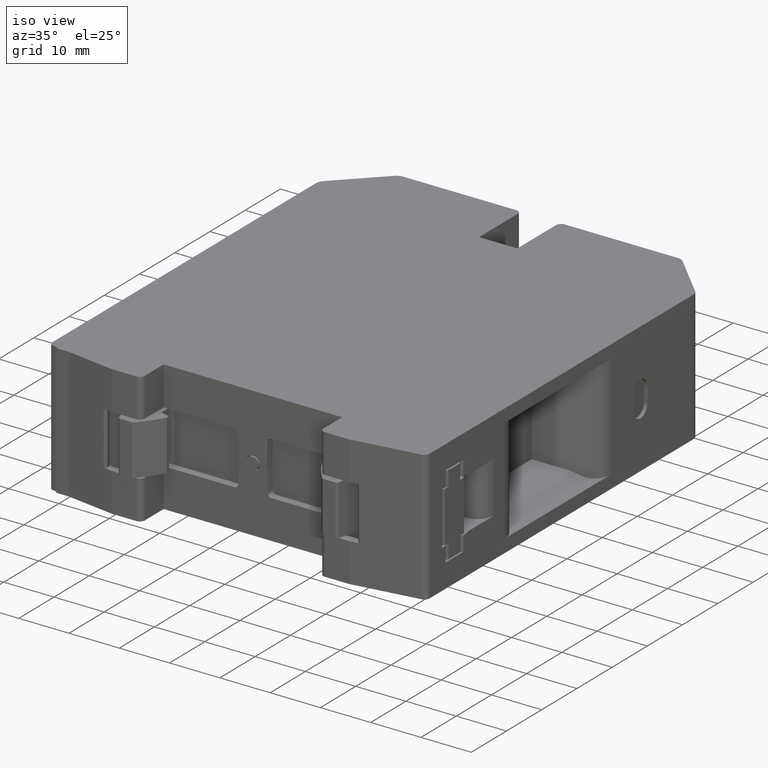
[diagram: clean part render]
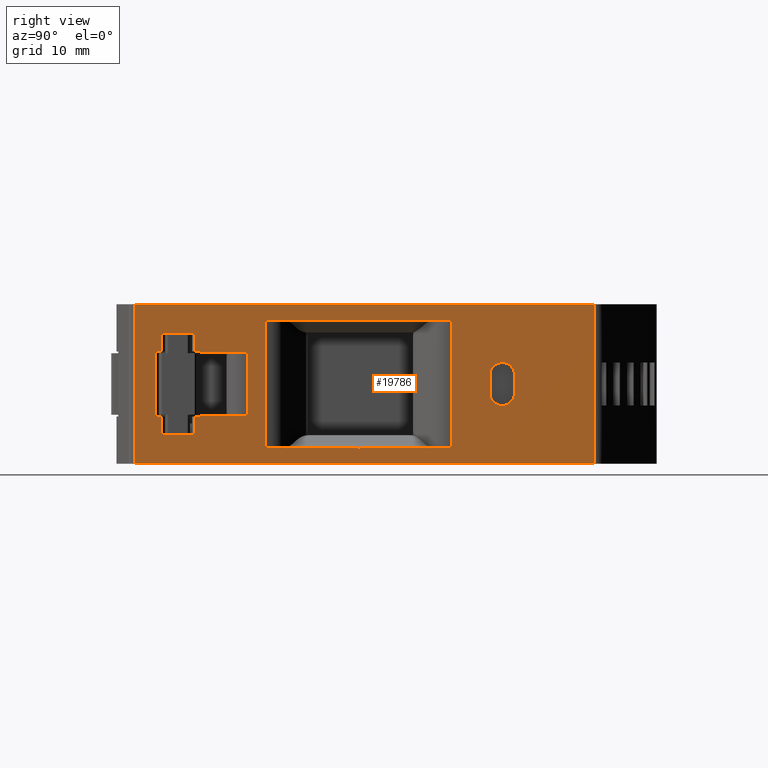
[diagram: tour spotlight — one face highlighted and labeled with its STEP entity id]
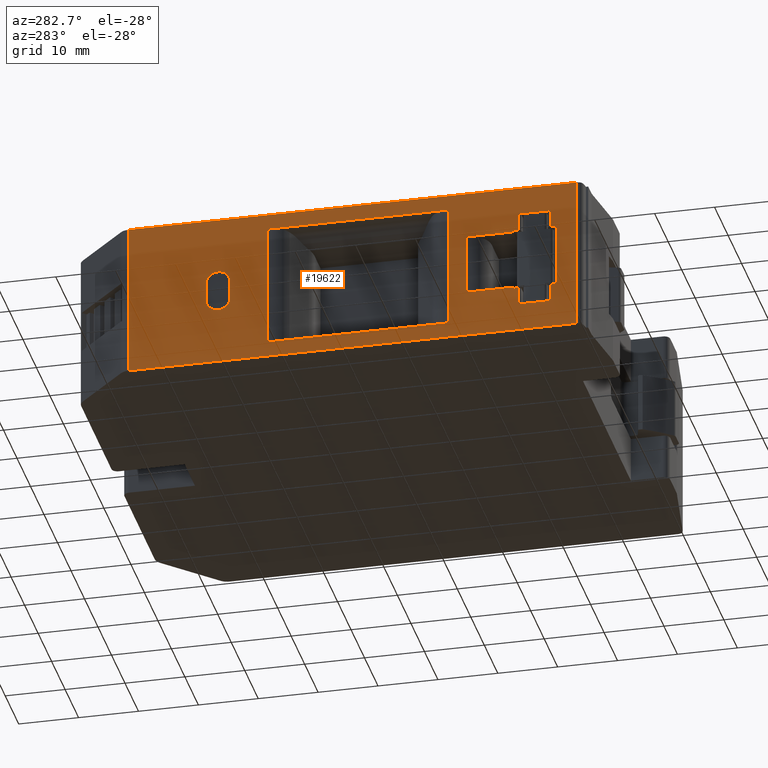
[diagram: tour spotlight — one face highlighted and labeled with its STEP entity id]
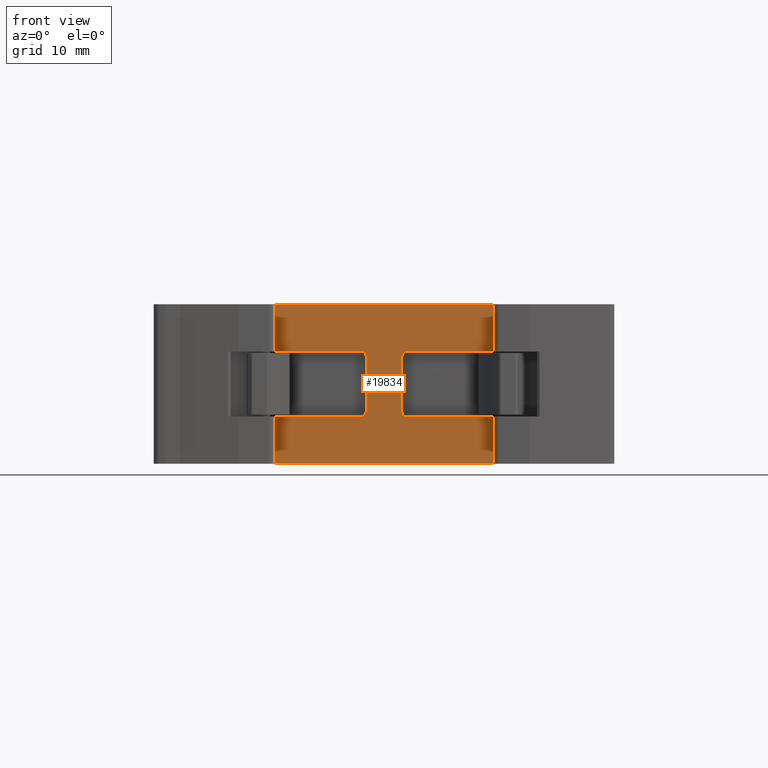
[diagram: tour spotlight — one face highlighted and labeled with its STEP entity id]
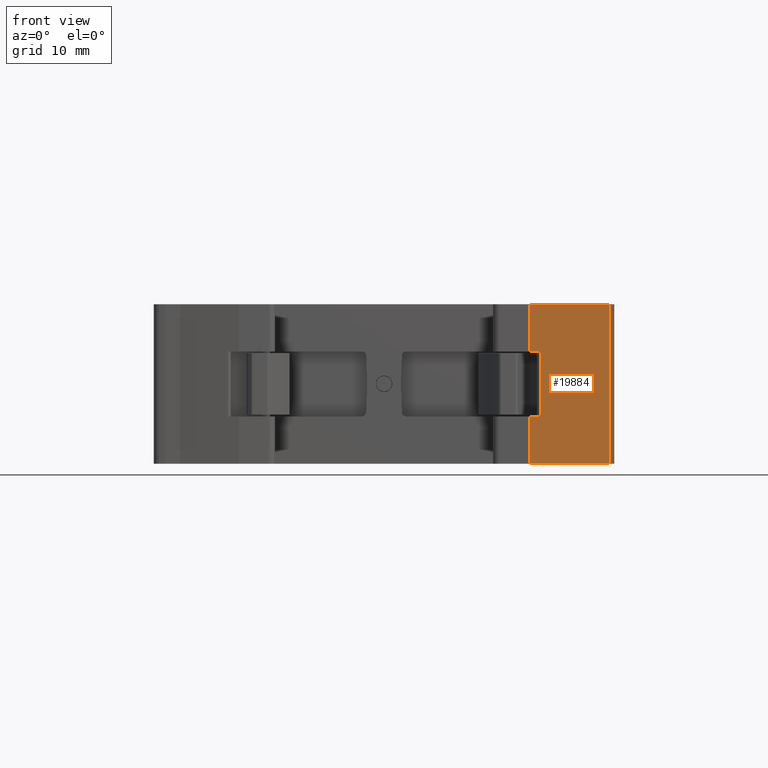
[diagram: tour spotlight — one face highlighted and labeled with its STEP entity id]
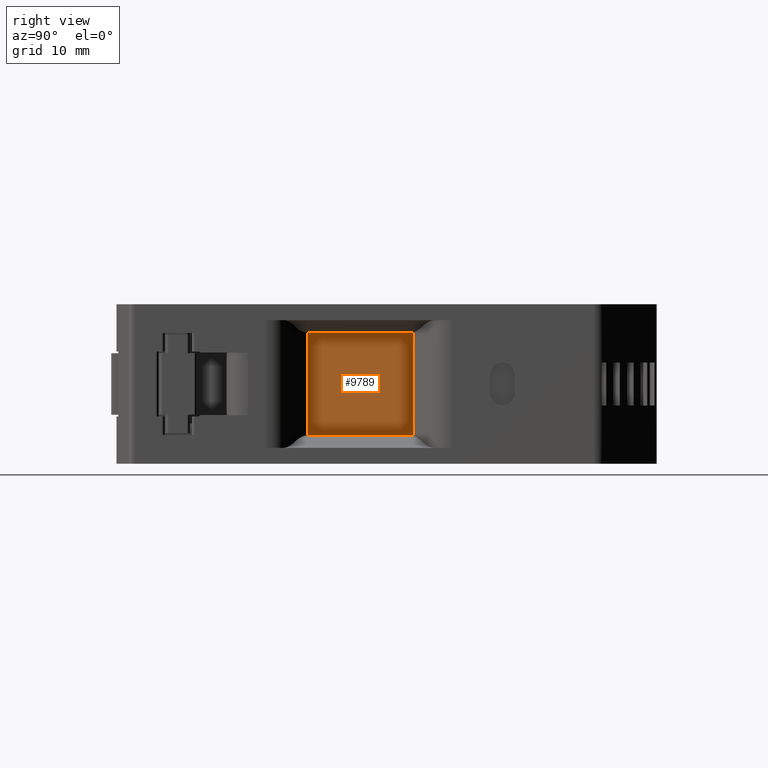
[diagram: tour spotlight — one face highlighted and labeled with its STEP entity id]
A machine part: a face-by-face anatomy tour. The part has 505 B-rep faces; the first image is the clean iso view, then the 5 largest visible faces are spotlighted one at a time (largest first), each with its STEP entity span.

Face 1 — right view, entity #19786. In plain terms, the highlighted planar face has unit normal (-1, -0, 0).
Definition (entity closure, byte-faithful):
#1513 = VECTOR ( 'NONE', #14174, 1000.000000000000000 ) ;
#1517 = AXIS2_PLACEMENT_3D ( 'NONE', #16312, #16352, #16321 ) ;
#1523 = CIRCLE ( 'NONE', #1517, 2.000000000000000000 ) ;
#1614 = CIRCLE ( 'NONE', #1616, 2.000000000000000000 ) ;
#1616 = AXIS2_PLACEMENT_3D ( 'NONE', #14177, #14178, #14161 ) ;
#1658 = VECTOR ( 'NONE', #14170, 1000.000000000000000 ) ;
#1691 = VECTOR ( 'NONE', #14179, 1000.000000000000000 ) ;
#1727 = VECTOR ( 'NONE', #14168, 1000.000000000000000 ) ;
#1786 = VECTOR ( 'NONE', #4193, 1000.000000000000000 ) ;
#1795 = VECTOR ( 'NONE', #4204, 1000.000000000000000 ) ;
#1826 = VECTOR ( 'NONE', #4251, 1000.000000000000000 ) ;
#1837 = VECTOR ( 'NONE', #24105, 1000.000000000000000 ) ;
#1838 = VECTOR ( 'NONE', #24099, 1000.000000000000000 ) ;
#1844 = VECTOR ( 'NONE', #24091, 1000.000000000000000 ) ;
#1846 = VECTOR ( 'NONE', #24106, 1000.000000000000000 ) ;
#1849 = VECTOR ( 'NONE', #2157, 1000.000000000000000 ) ;
#1850 = VECTOR ( 'NONE', #24121, 1000.000000000000000 ) ;
#1855 = VECTOR ( 'NONE', #24116, 1000.000000000000000 ) ;
#1858 = VECTOR ( 'NONE', #2156, 1000.000000000000000 ) ;
#1864 = VECTOR ( 'NONE', #19018, 1000.000000000000000 ) ;
#1870 = AXIS2_PLACEMENT_3D ( 'NONE', #2133, #2134, #2138 ) ;
#1879 = CIRCLE ( 'NONE', #1885, 0.5000000000000004400 ) ;
#1885 = AXIS2_PLACEMENT_3D ( 'NONE', #20140, #20142, #2147 ) ;
#1888 = VECTOR ( 'NONE', #14156, 1000.000000000000000 ) ;
#1889 = VECTOR ( 'NONE', #14150, 1000.000000000000000 ) ;
#1891 = CIRCLE ( 'NONE', #1870, 0.5000000000000004400 ) ;
#1894 = VECTOR ( 'NONE', #14158, 1000.000000000000000 ) ;
#1898 = VECTOR ( 'NONE', #19006, 1000.000000000000000 ) ;
#1899 = VECTOR ( 'NONE', #3889, 1000.000000000000000 ) ;
#1904 = VECTOR ( 'NONE', #14144, 1000.000000000000000 ) ;
#1922 = CIRCLE ( 'NONE', #1923, 2.000000000000000000 ) ;
#1923 = AXIS2_PLACEMENT_3D ( 'NONE', #14142, #14173, #14180 ) ;
#2070 = EDGE_CURVE ( 'NONE', #11639, #11683, #6003, .T. ) ;
#2133 = CARTESIAN_POINT ( 'NONE',  ( 42.63494894020147500, -47.59622967976660800, -16.85300394028070100 ) ) ;
#2134 = DIRECTION ( 'NONE',  ( 1.000000000000000000, -7.527063337521150100E-014, -2.096359893981430100E-014 ) ) ;
#2138 = DIRECTION ( 'NONE',  ( -6.938893903907222100E-014, -1.000000000000000000, 2.046973701652630400E-012 ) ) ;
#2147 = DIRECTION ( 'NONE',  ( 1.110223024625155500E-013, -1.387778780781444400E-014, 1.000000000000000000 ) ) ;
#2156 = DIRECTION ( 'NONE',  ( -7.527063337521129900E-014, -1.000000000000000000, 1.052046592960252000E-014 ) ) ;
#2157 = DIRECTION ( 'NONE',  ( 3.469446951962950400E-016, -1.000000000000000000, 7.590283208300000200E-015 ) ) ;
#2158 = CARTESIAN_POINT ( 'NONE',  ( 42.63494894020247700, -40.07358999069830200, -16.35300394028085000 ) ) ;
#2172 = LINE ( 'NONE', #2175, #1849 ) ;
#2175 = CARTESIAN_POINT ( 'NONE',  ( 42.63494894020546200, 3.450018717534978100, -0.8518099551459669100 ) ) ;
#2177 = LINE ( 'NONE', #2158, #1858 ) ;
#3326 = CARTESIAN_POINT ( 'NONE',  ( 42.63494894020147500, -47.99993130224246600, -16.55800394026234900 ) ) ;
#3332 = CARTESIAN_POINT ( 'NONE',  ( 42.63494894020147500, -48.69479310831040700, -19.55450991168289900 ) ) ;
#3352 = CARTESIAN_POINT ( 'NONE',  ( 42.63494894020097800, -55.09993130219785200, -16.55800394024779700 ) ) ;
#3379 = CARTESIAN_POINT ( 'NONE',  ( 42.63494894020544700, 1.388292451016265700, -14.75450991170393100 ) ) ;
#3381 = CARTESIAN_POINT ( 'NONE',  ( 42.63494894020547600, 3.388292451016246400, -12.75450991170089000 ) ) ;
#3383 = CARTESIAN_POINT ( 'NONE',  ( 42.63494894020147500, -47.59622967976660800, -16.35300394028074700 ) ) ;
#3398 = CARTESIAN_POINT ( 'NONE',  ( 42.63494894020497800, -54.09762709587489800, -5.951015883168441400 ) ) ;
#3405 = CARTESIAN_POINT ( 'NONE',  ( 42.63494894020097800, -54.09762709591959900, -19.55450991167185000 ) ) ;
#3411 = CARTESIAN_POINT ( 'NONE',  ( 42.63494894020147500, -48.69479310830426800, -16.55800394026094600 ) ) ;
#3426 = CARTESIAN_POINT ( 'NONE',  ( 42.63494894020497800, -48.69479310826565000, -5.951015883168441400 ) ) ;
#3429 = CARTESIAN_POINT ( 'NONE',  ( 42.63494894020097800, -54.09762709591350900, -16.55800394024985100 ) ) ;
#3658 = VECTOR ( 'NONE', #5032, 1000.000000000000000 ) ;
#3889 = DIRECTION ( 'NONE',  ( -1.090655343816137900E-013, 3.252606517456514800E-016, -1.000000000000000000 ) ) ;
#3957 = LINE ( 'NONE', #3999, #1899 ) ;
#3999 = CARTESIAN_POINT ( 'NONE',  ( 42.63494894020447400, -0.6117075489616014000, -12.75450991174025000 ) ) ;
#4181 = LINE ( 'NONE', #4205, #1786 ) ;
#4193 = DIRECTION ( 'NONE',  ( 7.527063337516858700E-014, 1.000000000000000000, -2.047596448534659900E-012 ) ) ;
#4195 = LINE ( 'NONE', #4203, #1795 ) ;
#4203 = CARTESIAN_POINT ( 'NONE',  ( 42.63494894020747200, 32.23635580356069900, -19.55450991184860100 ) ) ;
#4204 = DIRECTION ( 'NONE',  ( 7.527063337516858700E-014, 1.000000000000000000, -2.047596448534659900E-012 ) ) ;
#4205 = CARTESIAN_POINT ( 'NONE',  ( 42.63494894020747200, 32.23635580356690200, -16.55800394042664800 ) ) ;
#4241 = LINE ( 'NONE', #4243, #1826 ) ;
#4243 = CARTESIAN_POINT ( 'NONE',  ( 42.63494894020497800, 32.23635580357839100, -5.951015883168441400 ) ) ;
#4251 = DIRECTION ( 'NONE',  ( 2.413392249765780000E-029, -1.000000000000000000, -2.799641881627869800E-042 ) ) ;
#4421 = EDGE_CURVE ( 'NONE', #10413, #10364, #1523, .T. ) ;
#5032 = DIRECTION ( 'NONE',  ( 2.413392249765780000E-029, -1.000000000000000000, -2.968168161695184400E-042 ) ) ;
#5592 = EDGE_LOOP ( 'NONE', ( #22247, #22186, #22145, #22206, #22187, #22181, #22185, #22174, #22173, #22175, #22178, #22207, #22267, #22259, #22193, #22194 ) ) ;
#5610 = EDGE_LOOP ( 'NONE', ( #22235, #22252, #22249, #22256 ) ) ;
#5616 = EDGE_LOOP ( 'NONE', ( #22285, #22210, #22225, #22202, #22213 ) ) ;
#5631 = EDGE_LOOP ( 'NONE', ( #22227, #22264, #22250, #22223 ) ) ;
#5963 = CARTESIAN_POINT ( 'NONE',  ( 42.63494894020547600, 32.23635580357839100, -2.954509911747591500 ) ) ;
#6003 = LINE ( 'NONE', #5963, #3658 ) ;
#8455 = LINE ( 'NONE', #8507, #9978 ) ;
#8507 = CARTESIAN_POINT ( 'NONE',  ( 42.63494894020610100, 16.33133758237956100, 116.2698819785796000 ) ) ;
#8517 = DIRECTION ( 'NONE',  ( 3.543549816310985700E-015, -0.0000000000000000000, 1.000000000000000000 ) ) ;
#8563 = EDGE_CURVE ( 'NONE', #10327, #10228, #4181, .T. ) ;
#8565 = EDGE_CURVE ( 'NONE', #10316, #10257, #4195, .T. ) ;
#8653 = EDGE_CURVE ( 'NONE', #10307, #11841, #4241, .T. ) ;
#8691 = EDGE_CURVE ( 'NONE', #20423, #20439, #24063, .T. ) ;
#8695 = EDGE_CURVE ( 'NONE', #20444, #11985, #24067, .T. ) ;
#8702 = EDGE_CURVE ( 'NONE', #20430, #20423, #24104, .T. ) ;
#8703 = EDGE_CURVE ( 'NONE', #20420, #11809, #24076, .T. ) ;
#8709 = EDGE_CURVE ( 'NONE', #10327, #10257, #24107, .T. ) ;
#8710 = EDGE_CURVE ( 'NONE', #20403, #20439, #24112, .T. ) ;
#8722 = EDGE_CURVE ( 'NONE', #20415, #10356, #2177, .T. ) ;
#8724 = EDGE_CURVE ( 'NONE', #20403, #20430, #2172, .T. ) ;
#8738 = EDGE_CURVE ( 'NONE', #10356, #10228, #1891, .T. ) ;
#8763 = EDGE_CURVE ( 'NONE', #10234, #11841, #19007, .T. ) ;
#8774 = EDGE_CURVE ( 'NONE', #12103, #10332, #19014, .T. ) ;
#8797 = EDGE_CURVE ( 'NONE', #12103, #11985, #1879, .T. ) ;
#8801 = EDGE_CURVE ( 'NONE', #20414, #20417, #3957, .T. ) ;
#8811 = EDGE_CURVE ( 'NONE', #10316, #10372, #14149, .T. ) ;
#8816 = EDGE_CURVE ( 'NONE', #10234, #10372, #14148, .T. ) ;
#8822 = EDGE_CURVE ( 'NONE', #11639, #10332, #14151, .T. ) ;
#8825 = EDGE_CURVE ( 'NONE', #10364, #20395, #14160, .T. ) ;
#8830 = EDGE_CURVE ( 'NONE', #20417, #10413, #1922, .T. ) ;
#8836 = EDGE_CURVE ( 'NONE', #20419, #20420, #14185, .T. ) ;
#8844 = EDGE_CURVE ( 'NONE', #20395, #20414, #1614, .T. ) ;
#8847 = EDGE_CURVE ( 'NONE', #20415, #20444, #14182, .T. ) ;
#8856 = EDGE_CURVE ( 'NONE', #10307, #11683, #14172, .T. ) ;
#8858 = EDGE_CURVE ( 'NONE', #20419, #11892, #14164, .T. ) ;
#9978 = VECTOR ( 'NONE', #8517, 1000.000000000000000 ) ;
#10019 = EDGE_CURVE ( 'NONE', #11809, #11892, #8455, .T. ) ;
#10228 = VERTEX_POINT ( 'NONE', #3326 ) ;
#10234 = VERTEX_POINT ( 'NONE', #3352 ) ;
#10257 = VERTEX_POINT ( 'NONE', #3332 ) ;
#10307 = VERTEX_POINT ( 'NONE', #3398 ) ;
#10316 = VERTEX_POINT ( 'NONE', #3405 ) ;
#10327 = VERTEX_POINT ( 'NONE', #3411 ) ;
#10332 = VERTEX_POINT ( 'NONE', #3426 ) ;
#10356 = VERTEX_POINT ( 'NONE', #3383 ) ;
#10364 = VERTEX_POINT ( 'NONE', #3381 ) ;
#10372 = VERTEX_POINT ( 'NONE', #3429 ) ;
#10413 = VERTEX_POINT ( 'NONE', #3379 ) ;
#11639 = VERTEX_POINT ( 'NONE', #19371 ) ;
#11683 = VERTEX_POINT ( 'NONE', #19409 ) ;
#11809 = VERTEX_POINT ( 'NONE', #19496 ) ;
#11841 = VERTEX_POINT ( 'NONE', #19555 ) ;
#11892 = VERTEX_POINT ( 'NONE', #19599 ) ;
#11985 = VERTEX_POINT ( 'NONE', #16757 ) ;
#12103 = VERTEX_POINT ( 'NONE', #17148 ) ;
#14131 = CARTESIAN_POINT ( 'NONE',  ( 42.63494894020447400, 3.388292451038395400, -9.754509911740248300 ) ) ;
#14142 = CARTESIAN_POINT ( 'NONE',  ( 42.63494894020547600, 1.388292451016244400, -12.75450991170393100 ) ) ;
#14144 = DIRECTION ( 'NONE',  ( 1.090655343815997900E-013, 0.0000000000000000000, 1.000000000000000000 ) ) ;
#14148 = LINE ( 'NONE', #14155, #1888 ) ;
#14149 = LINE ( 'NONE', #14152, #1889 ) ;
#14150 = DIRECTION ( 'NONE',  ( 2.096359893996845100E-014, 2.047596448534659900E-012, 1.000000000000000000 ) ) ;
#14151 = LINE ( 'NONE', #14157, #1894 ) ;
#14152 = CARTESIAN_POINT ( 'NONE',  ( 42.63494894020097800, -54.09762709592425300, -21.80450991153169900 ) ) ;
#14155 = CARTESIAN_POINT ( 'NONE',  ( 42.63494894020747200, 32.23635580356690200, -16.55800394042664800 ) ) ;
#14156 = DIRECTION ( 'NONE',  ( 7.527063337516858700E-014, 1.000000000000000000, -2.047596448534659900E-012 ) ) ;
#14157 = CARTESIAN_POINT ( 'NONE',  ( 42.63494894020547600, -48.69479310826565000, -0.7045099117389888000 ) ) ;
#14158 = DIRECTION ( 'NONE',  ( -1.091210455328450000E-013, -2.770963122740249900E-031, -1.000000000000000000 ) ) ;
#14160 = LINE ( 'NONE', #14131, #1904 ) ;
#14161 = DIRECTION ( 'NONE',  ( -1.075528555105620400E-013, 0.0000000000000000000, -1.000000000000000000 ) ) ;
#14162 = CARTESIAN_POINT ( 'NONE',  ( 42.63494894020447400, -40.07358999067612600, -12.35450991174018900 ) ) ;
#14164 = LINE ( 'NONE', #14167, #1727 ) ;
#14167 = CARTESIAN_POINT ( 'NONE',  ( 42.63494894020574600, 32.23635580357841200, 1.745490088259545200 ) ) ;
#14168 = DIRECTION ( 'NONE',  ( -8.522430402562907300E-028, 1.000000000000000000, -7.588903805997491000E-015 ) ) ;
#14170 = DIRECTION ( 'NONE',  ( 1.091210455328450000E-013, -1.631448787798985100E-017, 1.000000000000000000 ) ) ;
#14172 = LINE ( 'NONE', #14183, #1691 ) ;
#14173 = DIRECTION ( 'NONE',  ( 1.000000000000000000, -7.527063337521150100E-014, -1.406550528030576100E-014 ) ) ;
#14174 = DIRECTION ( 'NONE',  ( -1.160044282855209900E-013, 0.0000000000000000000, -1.000000000000000000 ) ) ;
#14177 = CARTESIAN_POINT ( 'NONE',  ( 42.63494894020447400, 1.388292451038393400, -9.754509911740248300 ) ) ;
#14178 = DIRECTION ( 'NONE',  ( 1.000000000000000000, 2.413392249765780000E-029, -1.091210455328450000E-013 ) ) ;
#14179 = DIRECTION ( 'NONE',  ( 1.091210455328450000E-013, 0.0000000000000000000, 1.000000000000000000 ) ) ;
#14180 = DIRECTION ( 'NONE',  ( 1.387778780781445700E-014, 0.0000000000000000000, 1.000000000000000000 ) ) ;
#14182 = LINE ( 'NONE', #14162, #1658 ) ;
#14183 = CARTESIAN_POINT ( 'NONE',  ( 42.63494894020547600, -54.09762709587489800, -0.7045099117389888000 ) ) ;
#14185 = LINE ( 'NONE', #14186, #1513 ) ;
#14186 = CARTESIAN_POINT ( 'NONE',  ( 42.63494894020697500, -58.49968170351445500, 9.245490088263864000 ) ) ;
#16312 = CARTESIAN_POINT ( 'NONE',  ( 42.63494894020547600, 1.388292451016244400, -12.75450991170393100 ) ) ;
#16321 = DIRECTION ( 'NONE',  ( 1.387778780781445700E-014, 0.0000000000000000000, 1.000000000000000000 ) ) ;
#16352 = DIRECTION ( 'NONE',  ( 1.000000000000000000, -7.527063337521150100E-014, -1.406550528030576100E-014 ) ) ;
#16757 = CARTESIAN_POINT ( 'NONE',  ( 42.63494894020497800, -47.59622967971980500, -6.156015883166190000 ) ) ;
#17148 = CARTESIAN_POINT ( 'NONE',  ( 42.63494894020497800, -47.99993130220650500, -5.951015883168441400 ) ) ;
#19006 = DIRECTION ( 'NONE',  ( 1.091210455328450000E-013, 1.056415291446159900E-027, 1.000000000000000000 ) ) ;
#19007 = LINE ( 'NONE', #19015, #1898 ) ;
#19014 = LINE ( 'NONE', #19017, #1864 ) ;
#19015 = CARTESIAN_POINT ( 'NONE',  ( 42.63494894020497800, -55.09993130216440700, -5.951015883168441400 ) ) ;
#19017 = CARTESIAN_POINT ( 'NONE',  ( 42.63494894020497800, 32.23635580357839100, -5.951015883168441400 ) ) ;
#19018 = DIRECTION ( 'NONE',  ( 2.413392249765780000E-029, -1.000000000000000000, -2.799641881627869800E-042 ) ) ;
#19371 = CARTESIAN_POINT ( 'NONE',  ( 42.63494894020547600, -48.69479310826565000, -2.954509911747591500 ) ) ;
#19409 = CARTESIAN_POINT ( 'NONE',  ( 42.63494894020547600, -54.09762709587489800, -2.954509911747591500 ) ) ;
#19496 = CARTESIAN_POINT ( 'NONE',  ( 42.63494894020559700, 16.33133758237956100, -24.25450991170753700 ) ) ;
#19555 = CARTESIAN_POINT ( 'NONE',  ( 42.63494894020497800, -55.09993130216440700, -5.951015883168441400 ) ) ;
#19599 = CARTESIAN_POINT ( 'NONE',  ( 42.63494894020569600, 16.33133758237956100, 1.745490088259665800 ) ) ;
#19786 = ADVANCED_FACE ( 'NONE', ( #23095, #23011, #23087, #23082 ), #23019, .F. ) ;
#20140 = CARTESIAN_POINT ( 'NONE',  ( 42.63494894020497800, -47.59622967971980500, -5.656015883166241500 ) ) ;
#20142 = DIRECTION ( 'NONE',  ( 1.000000000000000000, 2.413392249765780000E-029, -1.091210455328450000E-013 ) ) ;
#20395 = VERTEX_POINT ( 'NONE', #23890 ) ;
#20403 = VERTEX_POINT ( 'NONE', #23936 ) ;
#20414 = VERTEX_POINT ( 'NONE', #23912 ) ;
#20415 = VERTEX_POINT ( 'NONE', #23891 ) ;
#20417 = VERTEX_POINT ( 'NONE', #23904 ) ;
#20419 = VERTEX_POINT ( 'NONE', #23920 ) ;
#20420 = VERTEX_POINT ( 'NONE', #23906 ) ;
#20423 = VERTEX_POINT ( 'NONE', #23923 ) ;
#20430 = VERTEX_POINT ( 'NONE', #23908 ) ;
#20439 = VERTEX_POINT ( 'NONE', #23945 ) ;
#20444 = VERTEX_POINT ( 'NONE', #23957 ) ;
#21667 = AXIS2_PLACEMENT_3D ( 'NONE', #23053, #23076, #23045 ) ;
#22145 = ORIENTED_EDGE ( 'NONE', *, *, #8709, .T. ) ;
#22173 = ORIENTED_EDGE ( 'NONE', *, *, #8856, .T. ) ;
#22174 = ORIENTED_EDGE ( 'NONE', *, *, #8653, .F. ) ;
#22175 = ORIENTED_EDGE ( 'NONE', *, *, #2070, .F. ) ;
#22178 = ORIENTED_EDGE ( 'NONE', *, *, #8822, .T. ) ;
#22181 = ORIENTED_EDGE ( 'NONE', *, *, #8816, .F. ) ;
#22185 = ORIENTED_EDGE ( 'NONE', *, *, #8763, .T. ) ;
#22186 = ORIENTED_EDGE ( 'NONE', *, *, #8563, .F. ) ;
#22187 = ORIENTED_EDGE ( 'NONE', *, *, #8811, .T. ) ;
#22193 = ORIENTED_EDGE ( 'NONE', *, *, #8847, .F. ) ;
#22194 = ORIENTED_EDGE ( 'NONE', *, *, #8722, .T. ) ;
#22202 = ORIENTED_EDGE ( 'NONE', *, *, #8825, .F. ) ;
#22206 = ORIENTED_EDGE ( 'NONE', *, *, #8565, .F. ) ;
#22207 = ORIENTED_EDGE ( 'NONE', *, *, #8774, .F. ) ;
#22210 = ORIENTED_EDGE ( 'NONE', *, *, #8801, .F. ) ;
#22213 = ORIENTED_EDGE ( 'NONE', *, *, #4421, .F. ) ;
#22223 = ORIENTED_EDGE ( 'NONE', *, *, #8724, .F. ) ;
#22225 = ORIENTED_EDGE ( 'NONE', *, *, #8844, .F. ) ;
#22227 = ORIENTED_EDGE ( 'NONE', *, *, #8710, .T. ) ;
#22235 = ORIENTED_EDGE ( 'NONE', *, *, #10019, .T. ) ;
#22247 = ORIENTED_EDGE ( 'NONE', *, *, #8738, .T. ) ;
#22249 = ORIENTED_EDGE ( 'NONE', *, *, #8836, .T. ) ;
#22250 = ORIENTED_EDGE ( 'NONE', *, *, #8702, .F. ) ;
#22252 = ORIENTED_EDGE ( 'NONE', *, *, #8858, .F. ) ;
#22256 = ORIENTED_EDGE ( 'NONE', *, *, #8703, .T. ) ;
#22259 = ORIENTED_EDGE ( 'NONE', *, *, #8695, .F. ) ;
#22264 = ORIENTED_EDGE ( 'NONE', *, *, #8691, .F. ) ;
#22267 = ORIENTED_EDGE ( 'NONE', *, *, #8797, .T. ) ;
#22285 = ORIENTED_EDGE ( 'NONE', *, *, #8830, .F. ) ;
#23011 = FACE_BOUND ( 'NONE', #5631, .T. ) ;
#23019 = PLANE ( 'NONE',  #21667 ) ;
#23045 = DIRECTION ( 'NONE',  ( 1.091210455328450000E-013, -1.631448787798985100E-017, 1.000000000000000000 ) ) ;
#23053 = CARTESIAN_POINT ( 'NONE',  ( 42.63494894020547600, 32.23635580357839100, -0.7045099117389888000 ) ) ;
#23076 = DIRECTION ( 'NONE',  ( -1.000000000000000000, -2.413392249765779800E-029, 1.091210455328450000E-013 ) ) ;
#23082 = FACE_BOUND ( 'NONE', #5616, .T. ) ;
#23087 = FACE_OUTER_BOUND ( 'NONE', #5610, .T. ) ;
#23095 = FACE_BOUND ( 'NONE', #5592, .T. ) ;
#23890 = CARTESIAN_POINT ( 'NONE',  ( 42.63494894020447400, 3.388292451038395400, -9.754509911740248300 ) ) ;
#23891 = CARTESIAN_POINT ( 'NONE',  ( 42.63494894020247700, -40.07358999069830200, -16.35300394028085000 ) ) ;
#23904 = CARTESIAN_POINT ( 'NONE',  ( 42.63494894020547600, -0.6117075489837503500, -12.75450991170694900 ) ) ;
#23906 = CARTESIAN_POINT ( 'NONE',  ( 42.63494894020308800, -58.49968170351445500, -24.25450991170758600 ) ) ;
#23908 = CARTESIAN_POINT ( 'NONE',  ( 42.63494894020556800, -37.12363999067783700, -0.8518099551456590500 ) ) ;
#23912 = CARTESIAN_POINT ( 'NONE',  ( 42.63494894020447400, -0.6117075489616014000, -9.754509911740248300 ) ) ;
#23920 = CARTESIAN_POINT ( 'NONE',  ( 42.63494894020610800, -58.49968170351445500, 1.745490088260234000 ) ) ;
#23923 = CARTESIAN_POINT ( 'NONE',  ( 42.63494894020331600, -37.12363999067791600, -21.65720986830118000 ) ) ;
#23936 = CARTESIAN_POINT ( 'NONE',  ( 42.63494894020565300, -6.876322574252425200, -0.8518099551459166200 ) ) ;
#23945 = CARTESIAN_POINT ( 'NONE',  ( 42.63494894020286800, -6.876322574252498900, -21.65720986830159900 ) ) ;
#23957 = CARTESIAN_POINT ( 'NONE',  ( 42.63494894020497800, -40.07358999067606900, -6.156015883166142000 ) ) ;
#24063 = LINE ( 'NONE', #24089, #1837 ) ;
#24067 = LINE ( 'NONE', #24069, #1844 ) ;
#24069 = CARTESIAN_POINT ( 'NONE',  ( 42.63494894020497800, -40.07358999067606900, -6.156015883166142000 ) ) ;
#24071 = CARTESIAN_POINT ( 'NONE',  ( 42.63494894020946900, -37.12363999067772400, 33.02680536979331500 ) ) ;
#24076 = LINE ( 'NONE', #24095, #1838 ) ;
#24082 = CARTESIAN_POINT ( 'NONE',  ( 42.63494894020147500, -48.69479310831501100, -21.80450991154279800 ) ) ;
#24089 = CARTESIAN_POINT ( 'NONE',  ( 42.63494894020318800, 3.450018717512794100, -21.65720986830159200 ) ) ;
#24091 = DIRECTION ( 'NONE',  ( -4.041396463545670000E-028, -1.000000000000000000, -3.483581975586310000E-015 ) ) ;
#24095 = CARTESIAN_POINT ( 'NONE',  ( 42.63494894020291100, -53.59993437637680800, -24.25450991170758300 ) ) ;
#24099 = DIRECTION ( 'NONE',  ( 3.771841561071713900E-029, 1.000000000000000000, 5.668231806829383100E-016 ) ) ;
#24104 = LINE ( 'NONE', #24071, #1846 ) ;
#24105 = DIRECTION ( 'NONE',  ( 7.492368868001600100E-014, 1.000000000000000000, 5.533992542840139800E-016 ) ) ;
#24106 = DIRECTION ( 'NONE',  ( -1.125627369091830000E-013, -3.510284733068980400E-015, -1.000000000000000000 ) ) ;
#24107 = LINE ( 'NONE', #24082, #1855 ) ;
#24112 = LINE ( 'NONE', #24115, #1850 ) ;
#24115 = CARTESIAN_POINT ( 'NONE',  ( 42.63494894020946900, -6.876322574252306200, 33.02680536979331500 ) ) ;
#24116 = DIRECTION ( 'NONE',  ( -2.096359893996845100E-014, -2.047596448534659900E-012, -1.000000000000000000 ) ) ;
#24121 = DIRECTION ( 'NONE',  ( -1.125627369091830000E-013, -3.510284733068980400E-015, -1.000000000000000000 ) ) ;

Face 2 — auxiliary view, entity #19622. In plain terms, the highlighted planar face has unit normal (1, 0, -0).
Definition (entity closure, byte-faithful):
#2 = CIRCLE ( 'NONE', #24198, 0.5000000000000004400 ) ;
#3 = CIRCLE ( 'NONE', #4, 2.000000000000000000 ) ;
#4 = AXIS2_PLACEMENT_3D ( 'NONE', #23849, #23860, #23867 ) ;
#7 = VECTOR ( 'NONE', #23932, 1000.000000000000000 ) ;
#20 = VECTOR ( 'NONE', #23925, 1000.000000000000000 ) ;
#23 = VECTOR ( 'NONE', #23930, 1000.000000000000000 ) ;
#1364 = CARTESIAN_POINT ( 'NONE',  ( -32.36505105979443900, -37.12363999067783700, -0.8518099551372534400 ) ) ;
#1490 = AXIS2_PLACEMENT_3D ( 'NONE', #16253, #16254, #16256 ) ;
#1508 = CIRCLE ( 'NONE', #1490, 2.000000000000000000 ) ;
#1929 = EDGE_CURVE ( 'NONE', #11851, #11647, #3733, .T. ) ;
#1930 = EDGE_CURVE ( 'NONE', #11562, #11647, #20742, .T. ) ;
#1973 = EDGE_CURVE ( 'NONE', #11378, #11391, #5000, .T. ) ;
#2000 = EDGE_CURVE ( 'NONE', #11429, #11421, #5193, .T. ) ;
#2006 = EDGE_CURVE ( 'NONE', #11284, #11497, #5214, .T. ) ;
#2049 = EDGE_CURVE ( 'NONE', #11508, #11465, #5667, .T. ) ;
#2072 = EDGE_CURVE ( 'NONE', #10377, #11732, #7613, .T. ) ;
#2073 = EDGE_CURVE ( 'NONE', #11545, #11680, #7594, .T. ) ;
#2075 = EDGE_CURVE ( 'NONE', #11854, #10473, #3643, .T. ) ;
#2078 = EDGE_CURVE ( 'NONE', #11551, #11854, #7592, .T. ) ;
#2092 = EDGE_CURVE ( 'NONE', #11602, #11643, #7197, .T. ) ;
#2103 = EDGE_CURVE ( 'NONE', #11821, #11497, #7230, .T. ) ;
#2124 = EDGE_CURVE ( 'NONE', #11602, #11686, #7277, .T. ) ;
#2129 = EDGE_CURVE ( 'NONE', #11686, #11851, #7290, .T. ) ;
#3386 = CARTESIAN_POINT ( 'NONE',  ( -32.36505105979542700, 3.388292451038395400, -9.754509911731549500 ) ) ;
#3449 = CARTESIAN_POINT ( 'NONE',  ( -32.36505105979519200, 1.388292451038393400, -7.754509911731549500 ) ) ;
#3564 = VECTOR ( 'NONE', #7354, 1000.000000000000000 ) ;
#3572 = VECTOR ( 'NONE', #5252, 1000.000000000000000 ) ;
#3576 = VECTOR ( 'NONE', #5181, 1000.000000000000000 ) ;
#3638 = VECTOR ( 'NONE', #5690, 1000.000000000000000 ) ;
#3643 = CIRCLE ( 'NONE', #3647, 2.000000000000000000 ) ;
#3645 = VECTOR ( 'NONE', #7593, 1000.000000000000000 ) ;
#3647 = AXIS2_PLACEMENT_3D ( 'NONE', #7608, #7598, #7602 ) ;
#3654 = VECTOR ( 'NONE', #7605, 1000.000000000000000 ) ;
#3660 = VECTOR ( 'NONE', #7595, 1000.000000000000000 ) ;
#3688 = VECTOR ( 'NONE', #7268, 1000.000000000000000 ) ;
#3693 = VECTOR ( 'NONE', #7217, 1000.000000000000000 ) ;
#3720 = VECTOR ( 'NONE', #7273, 1000.000000000000000 ) ;
#3721 = VECTOR ( 'NONE', #20722, 1000.000000000000000 ) ;
#3726 = AXIS2_PLACEMENT_3D ( 'NONE', #20733, #20761, #20725 ) ;
#3733 = CIRCLE ( 'NONE', #3726, 0.5000000000000004400 ) ;
#3770 = VECTOR ( 'NONE', #4993, 1000.000000000000000 ) ;
#4407 = EDGE_CURVE ( 'NONE', #10473, #10377, #1508, .T. ) ;
#4991 = CARTESIAN_POINT ( 'NONE',  ( -32.36505105979503600, 32.23635580357839100, -5.951015883159739900 ) ) ;
#4993 = DIRECTION ( 'NONE',  ( -4.389960119497509900E-033, 1.000000000000000000, 5.092548138585459700E-046 ) ) ;
#5000 = LINE ( 'NONE', #4991, #3770 ) ;
#5173 = CARTESIAN_POINT ( 'NONE',  ( -32.36505105979203700, 32.23635580357249400, -16.55800394042556800 ) ) ;
#5181 = DIRECTION ( 'NONE',  ( -7.527063337518269800E-014, -1.000000000000000000, 2.047596448534659900E-012 ) ) ;
#5193 = LINE ( 'NONE', #5173, #3576 ) ;
#5214 = LINE ( 'NONE', #5234, #3572 ) ;
#5234 = CARTESIAN_POINT ( 'NONE',  ( -32.36505105979062300, -37.12363999067772400, 33.02680536980181400 ) ) ;
#5251 = EDGE_LOOP ( 'NONE', ( #10312, #10378, #10373, #10225, #10310 ) ) ;
#5252 = DIRECTION ( 'NONE',  ( -1.125774478160156000E-013, -3.510284733068980400E-015, -1.000000000000000000 ) ) ;
#5256 = EDGE_LOOP ( 'NONE', ( #10318, #10365, #10306, #10371 ) ) ;
#5276 = EDGE_LOOP ( 'NONE', ( #10223, #10253, #10277, #10278, #10250, #10222, #10258, #10255, #10217, #10259, #10216, #10268, #10263, #10328, #10343, #10336 ) ) ;
#5298 = EDGE_LOOP ( 'NONE', ( #10290, #10309, #10349, #10360 ) ) ;
#5667 = LINE ( 'NONE', #5731, #3638 ) ;
#5690 = DIRECTION ( 'NONE',  ( -4.389960119497509900E-033, 1.000000000000000000, 5.399097415295289100E-046 ) ) ;
#5731 = CARTESIAN_POINT ( 'NONE',  ( -32.36505105979461700, 32.23635580357839100, -2.954509911738342000 ) ) ;
#6985 = AXIS2_PLACEMENT_3D ( 'NONE', #17819, #17787, #17754 ) ;
#7197 = LINE ( 'NONE', #7224, #3693 ) ;
#7217 = DIRECTION ( 'NONE',  ( -7.527063337521119800E-014, -1.000000000000000000, 1.052046592960252000E-014 ) ) ;
#7224 = CARTESIAN_POINT ( 'NONE',  ( -32.36505105979742300, -40.07358999069266000, -16.35300394027951800 ) ) ;
#7230 = LINE ( 'NONE', #7238, #3688 ) ;
#7238 = CARTESIAN_POINT ( 'NONE',  ( -32.36505105979686200, 3.450018717518345200, -21.65720986829963800 ) ) ;
#7268 = DIRECTION ( 'NONE',  ( -7.561757807040690000E-014, -1.000000000000000000, -5.533992542840089500E-016 ) ) ;
#7273 = DIRECTION ( 'NONE',  ( 1.160191391923536000E-013, -1.631448787798985100E-017, 1.000000000000000000 ) ) ;
#7277 = LINE ( 'NONE', #7287, #3720 ) ;
#7287 = CARTESIAN_POINT ( 'NONE',  ( -32.36505105979583900, -40.07358999067612600, -12.35450991173178900 ) ) ;
#7290 = LINE ( 'NONE', #7318, #3564 ) ;
#7318 = CARTESIAN_POINT ( 'NONE',  ( -32.36505105979503600, -40.07358999067606900, -6.156015883157690100 ) ) ;
#7354 = DIRECTION ( 'NONE',  ( -3.560163306765304900E-028, -1.000000000000000000, -3.483581975586310000E-015 ) ) ;
#7592 = LINE ( 'NONE', #7604, #3654 ) ;
#7593 = DIRECTION ( 'NONE',  ( -1.160044282855209900E-013, 0.0000000000000000000, -1.000000000000000000 ) ) ;
#7594 = LINE ( 'NONE', #7612, #3660 ) ;
#7595 = DIRECTION ( 'NONE',  ( -7.527063337518269800E-014, -1.000000000000000000, 2.047596448534659900E-012 ) ) ;
#7598 = DIRECTION ( 'NONE',  ( -1.000000000000000000, -4.389960119497509900E-033, 1.160191391923536000E-013 ) ) ;
#7602 = DIRECTION ( 'NONE',  ( 1.144917494144692700E-013, 0.0000000000000000000, 1.000000000000000000 ) ) ;
#7604 = CARTESIAN_POINT ( 'NONE',  ( -32.36505105979542700, -0.6117075489616014000, -9.754509911731549500 ) ) ;
#7605 = DIRECTION ( 'NONE',  ( 1.160044282855209900E-013, -2.891205793294130100E-016, 1.000000000000000000 ) ) ;
#7608 = CARTESIAN_POINT ( 'NONE',  ( -32.36505105979542700, 1.388292451038393400, -9.754509911731549500 ) ) ;
#7609 = CARTESIAN_POINT ( 'NONE',  ( -32.36505105979583900, 3.388292451038395400, -12.75450991172549000 ) ) ;
#7612 = CARTESIAN_POINT ( 'NONE',  ( -32.36505105979203700, 32.23635580357249400, -16.55800394042556800 ) ) ;
#7613 = LINE ( 'NONE', #7609, #3645 ) ;
#10216 = ORIENTED_EDGE ( 'NONE', *, *, #1973, .F. ) ;
#10217 = ORIENTED_EDGE ( 'NONE', *, *, #2049, .F. ) ;
#10222 = ORIENTED_EDGE ( 'NONE', *, *, #1929, .T. ) ;
#10223 = ORIENTED_EDGE ( 'NONE', *, *, #2073, .F. ) ;
#10225 = ORIENTED_EDGE ( 'NONE', *, *, #4407, .F. ) ;
#10250 = ORIENTED_EDGE ( 'NONE', *, *, #2129, .T. ) ;
#10253 = ORIENTED_EDGE ( 'NONE', *, *, #19966, .T. ) ;
#10255 = ORIENTED_EDGE ( 'NONE', *, *, #19972, .T. ) ;
#10258 = ORIENTED_EDGE ( 'NONE', *, *, #1930, .F. ) ;
#10259 = ORIENTED_EDGE ( 'NONE', *, *, #19929, .T. ) ;
#10263 = ORIENTED_EDGE ( 'NONE', *, *, #2000, .F. ) ;
#10268 = ORIENTED_EDGE ( 'NONE', *, *, #19932, .T. ) ;
#10277 = ORIENTED_EDGE ( 'NONE', *, *, #2092, .F. ) ;
#10278 = ORIENTED_EDGE ( 'NONE', *, *, #2124, .T. ) ;
#10290 = ORIENTED_EDGE ( 'NONE', *, *, #19935, .F. ) ;
#10306 = ORIENTED_EDGE ( 'NONE', *, *, #2006, .T. ) ;
#10309 = ORIENTED_EDGE ( 'NONE', *, *, #19942, .T. ) ;
#10310 = ORIENTED_EDGE ( 'NONE', *, *, #2075, .F. ) ;
#10312 = ORIENTED_EDGE ( 'NONE', *, *, #2078, .F. ) ;
#10318 = ORIENTED_EDGE ( 'NONE', *, *, #19930, .F. ) ;
#10328 = ORIENTED_EDGE ( 'NONE', *, *, #19968, .T. ) ;
#10336 = ORIENTED_EDGE ( 'NONE', *, *, #19947, .T. ) ;
#10343 = ORIENTED_EDGE ( 'NONE', *, *, #19967, .F. ) ;
#10349 = ORIENTED_EDGE ( 'NONE', *, *, #19953, .T. ) ;
#10360 = ORIENTED_EDGE ( 'NONE', *, *, #19955, .F. ) ;
#10365 = ORIENTED_EDGE ( 'NONE', *, *, #19951, .F. ) ;
#10371 = ORIENTED_EDGE ( 'NONE', *, *, #2103, .F. ) ;
#10373 = ORIENTED_EDGE ( 'NONE', *, *, #2072, .F. ) ;
#10377 = VERTEX_POINT ( 'NONE', #3386 ) ;
#10378 = ORIENTED_EDGE ( 'NONE', *, *, #19961, .F. ) ;
#10473 = VERTEX_POINT ( 'NONE', #3449 ) ;
#11284 = VERTEX_POINT ( 'NONE', #1364 ) ;
#11378 = VERTEX_POINT ( 'NONE', #19119 ) ;
#11391 = VERTEX_POINT ( 'NONE', #19143 ) ;
#11421 = VERTEX_POINT ( 'NONE', #19144 ) ;
#11429 = VERTEX_POINT ( 'NONE', #19196 ) ;
#11465 = VERTEX_POINT ( 'NONE', #19199 ) ;
#11497 = VERTEX_POINT ( 'NONE', #19230 ) ;
#11508 = VERTEX_POINT ( 'NONE', #19269 ) ;
#11545 = VERTEX_POINT ( 'NONE', #19244 ) ;
#11551 = VERTEX_POINT ( 'NONE', #19295 ) ;
#11562 = VERTEX_POINT ( 'NONE', #19318 ) ;
#11596 = VERTEX_POINT ( 'NONE', #19309 ) ;
#11602 = VERTEX_POINT ( 'NONE', #19305 ) ;
#11623 = VERTEX_POINT ( 'NONE', #19344 ) ;
#11626 = VERTEX_POINT ( 'NONE', #19369 ) ;
#11637 = VERTEX_POINT ( 'NONE', #19338 ) ;
#11643 = VERTEX_POINT ( 'NONE', #19366 ) ;
#11647 = VERTEX_POINT ( 'NONE', #19367 ) ;
#11661 = VERTEX_POINT ( 'NONE', #19352 ) ;
#11680 = VERTEX_POINT ( 'NONE', #19393 ) ;
#11686 = VERTEX_POINT ( 'NONE', #19421 ) ;
#11732 = VERTEX_POINT ( 'NONE', #19445 ) ;
#11765 = VERTEX_POINT ( 'NONE', #19459 ) ;
#11821 = VERTEX_POINT ( 'NONE', #19498 ) ;
#11851 = VERTEX_POINT ( 'NONE', #19548 ) ;
#11854 = VERTEX_POINT ( 'NONE', #19583 ) ;
#11888 = VERTEX_POINT ( 'NONE', #19595 ) ;
#16253 = CARTESIAN_POINT ( 'NONE',  ( -32.36505105979542700, 1.388292451038393400, -9.754509911731549500 ) ) ;
#16254 = DIRECTION ( 'NONE',  ( -1.000000000000000000, -4.389960119497509900E-033, 1.160191391923536000E-013 ) ) ;
#16256 = DIRECTION ( 'NONE',  ( 1.144917494144692700E-013, 0.0000000000000000000, 1.000000000000000000 ) ) ;
#17754 = DIRECTION ( 'NONE',  ( 1.160191391923536000E-013, -1.631448787798985100E-017, 1.000000000000000000 ) ) ;
#17759 = FACE_OUTER_BOUND ( 'NONE', #5298, .T. ) ;
#17787 = DIRECTION ( 'NONE',  ( 1.000000000000000000, 4.389960119497509200E-033, -1.160191391923536000E-013 ) ) ;
#17799 = FACE_BOUND ( 'NONE', #5276, .T. ) ;
#17812 = FACE_BOUND ( 'NONE', #5256, .T. ) ;
#17816 = FACE_BOUND ( 'NONE', #5251, .T. ) ;
#17818 = PLANE ( 'NONE',  #6985 ) ;
#17819 = CARTESIAN_POINT ( 'NONE',  ( -32.36505105979442500, 32.23635580357839100, -0.7045099117305373400 ) ) ;
#19119 = CARTESIAN_POINT ( 'NONE',  ( -32.36505105979503600, -55.09993130216440700, -5.951015883159739900 ) ) ;
#19143 = CARTESIAN_POINT ( 'NONE',  ( -32.36505105979503600, -54.09762709587489800, -5.951015883159739900 ) ) ;
#19144 = CARTESIAN_POINT ( 'NONE',  ( -32.36505105979842500, -55.09993130218665400, -16.55800394024677000 ) ) ;
#19196 = CARTESIAN_POINT ( 'NONE',  ( -32.36505105979842500, -54.09762709590231100, -16.55800394024881700 ) ) ;
#19199 = CARTESIAN_POINT ( 'NONE',  ( -32.36505105979461700, -48.69479310826565000, -2.954509911738342000 ) ) ;
#19230 = CARTESIAN_POINT ( 'NONE',  ( -32.36505105979835400, -37.12363999067791600, -21.65720986829966000 ) ) ;
#19244 = CARTESIAN_POINT ( 'NONE',  ( -32.36505105979803400, -47.99993130223096200, -16.55800394026132200 ) ) ;
#19269 = CARTESIAN_POINT ( 'NONE',  ( -32.36505105979461700, -54.09762709587489800, -2.954509911738342000 ) ) ;
#19295 = CARTESIAN_POINT ( 'NONE',  ( -32.36505105979442500, -0.6117075489781020900, -12.75450991170537000 ) ) ;
#19305 = CARTESIAN_POINT ( 'NONE',  ( -32.36505105979742300, -40.07358999069266000, -16.35300394027951800 ) ) ;
#19309 = CARTESIAN_POINT ( 'NONE',  ( -32.36505105979409800, -58.49967953969945000, 1.745490088269199000 ) ) ;
#19318 = CARTESIAN_POINT ( 'NONE',  ( -32.36505105979503600, -48.69479310826565000, -5.951015883159739900 ) ) ;
#19338 = CARTESIAN_POINT ( 'NONE',  ( -32.36505105979842500, -54.09762709590840000, -19.55450991167027300 ) ) ;
#19344 = CARTESIAN_POINT ( 'NONE',  ( -32.36505105979711800, -58.49967953969945000, -24.25450991170575300 ) ) ;
#19352 = CARTESIAN_POINT ( 'NONE',  ( -32.36505105979443900, -6.876322574252424300, -0.8518099551374903600 ) ) ;
#19366 = CARTESIAN_POINT ( 'NONE',  ( -32.36505105979803400, -47.59622967975590800, -16.35300394027941800 ) ) ;
#19367 = CARTESIAN_POINT ( 'NONE',  ( -32.36505105979503600, -47.99993130220670400, -5.951015883159739900 ) ) ;
#19369 = CARTESIAN_POINT ( 'NONE',  ( -32.36505105979803400, -48.69479310829920100, -19.55450991168131800 ) ) ;
#19393 = CARTESIAN_POINT ( 'NONE',  ( -32.36505105979803400, -48.69479310829306900, -16.55800394025987300 ) ) ;
#19421 = CARTESIAN_POINT ( 'NONE',  ( -32.36505105979503600, -40.07358999067606900, -6.156015883157690100 ) ) ;
#19445 = CARTESIAN_POINT ( 'NONE',  ( -32.36505105979442500, 3.388292451021894400, -12.75450991169933000 ) ) ;
#19459 = CARTESIAN_POINT ( 'NONE',  ( -32.36505105979725300, 16.33133758237948600, -24.25450991170570300 ) ) ;
#19498 = CARTESIAN_POINT ( 'NONE',  ( -32.36505105979677700, -6.876322574252498000, -21.65720986829976600 ) ) ;
#19548 = CARTESIAN_POINT ( 'NONE',  ( -32.36505105979503600, -47.59622967971891000, -6.156015883157742500 ) ) ;
#19583 = CARTESIAN_POINT ( 'NONE',  ( -32.36505105979542700, -0.6117075489616014000, -9.754509911731549500 ) ) ;
#19595 = CARTESIAN_POINT ( 'NONE',  ( -32.36505105979715300, 16.33133758237948600, 1.745490088268630800 ) ) ;
#19622 = ADVANCED_FACE ( 'NONE', ( #17799, #17759, #17812, #17816 ), #17818, .F. ) ;
#19929 = EDGE_CURVE ( 'NONE', #11508, #11391, #23779, .T. ) ;
#19930 = EDGE_CURVE ( 'NONE', #11661, #11821, #23769, .T. ) ;
#19932 = EDGE_CURVE ( 'NONE', #11378, #11421, #23771, .T. ) ;
#19935 = EDGE_CURVE ( 'NONE', #11596, #11623, #23750, .T. ) ;
#19942 = EDGE_CURVE ( 'NONE', #11596, #11888, #23813, .T. ) ;
#19947 = EDGE_CURVE ( 'NONE', #11626, #11680, #23792, .T. ) ;
#19951 = EDGE_CURVE ( 'NONE', #11284, #11661, #23819, .T. ) ;
#19953 = EDGE_CURVE ( 'NONE', #11888, #11765, #23876, .T. ) ;
#19955 = EDGE_CURVE ( 'NONE', #11623, #11765, #23835, .T. ) ;
#19961 = EDGE_CURVE ( 'NONE', #11732, #11551, #3, .T. ) ;
#19966 = EDGE_CURVE ( 'NONE', #11545, #11643, #2, .T. ) ;
#19967 = EDGE_CURVE ( 'NONE', #11626, #11637, #23836, .T. ) ;
#19968 = EDGE_CURVE ( 'NONE', #11429, #11637, #23894, .T. ) ;
#19972 = EDGE_CURVE ( 'NONE', #11562, #11465, #23889, .T. ) ;
#20722 = DIRECTION ( 'NONE',  ( -4.389960119497509900E-033, 1.000000000000000000, 5.092548138585459700E-046 ) ) ;
#20725 = DIRECTION ( 'NONE',  ( -1.110223024625155500E-013, 0.0000000000000000000, -1.000000000000000000 ) ) ;
#20733 = CARTESIAN_POINT ( 'NONE',  ( -32.36505105979503600, -47.59622967971891000, -5.656015883157741600 ) ) ;
#20741 = CARTESIAN_POINT ( 'NONE',  ( -32.36505105979503600, 32.23635580357839100, -5.951015883159739900 ) ) ;
#20742 = LINE ( 'NONE', #20741, #3721 ) ;
#20761 = DIRECTION ( 'NONE',  ( -1.000000000000000000, -4.389960119497509900E-033, 1.160191391923536000E-013 ) ) ;
#21594 = VECTOR ( 'NONE', #23870, 1000.000000000000000 ) ;
#21595 = VECTOR ( 'NONE', #23764, 1000.000000000000000 ) ;
#21599 = VECTOR ( 'NONE', #23794, 1000.000000000000000 ) ;
#21604 = VECTOR ( 'NONE', #23768, 1000.000000000000000 ) ;
#21611 = VECTOR ( 'NONE', #23754, 1000.000000000000000 ) ;
#21616 = VECTOR ( 'NONE', #23818, 1000.000000000000000 ) ;
#21617 = VECTOR ( 'NONE', #23863, 1000.000000000000000 ) ;
#21618 = VECTOR ( 'NONE', #23878, 1000.000000000000000 ) ;
#21636 = VECTOR ( 'NONE', #23752, 1000.000000000000000 ) ;
#23739 = CARTESIAN_POINT ( 'NONE',  ( -32.36505105979062300, -6.876322574252306200, 33.02680536980161500 ) ) ;
#23750 = LINE ( 'NONE', #23751, #21636 ) ;
#23751 = CARTESIAN_POINT ( 'NONE',  ( -32.36505105979323100, -58.49967953969945000, 9.245490088272564600 ) ) ;
#23752 = DIRECTION ( 'NONE',  ( -1.160044282855209900E-013, 0.0000000000000000000, -1.000000000000000000 ) ) ;
#23754 = DIRECTION ( 'NONE',  ( -1.160191391923536000E-013, -2.255529231517710100E-030, -1.000000000000000000 ) ) ;
#23764 = DIRECTION ( 'NONE',  ( -1.160191391923536000E-013, 0.0000000000000000000, -1.000000000000000000 ) ) ;
#23768 = DIRECTION ( 'NONE',  ( -1.125774478160156000E-013, -3.510284733068980400E-015, -1.000000000000000000 ) ) ;
#23769 = LINE ( 'NONE', #23739, #21604 ) ;
#23771 = LINE ( 'NONE', #23786, #21611 ) ;
#23779 = LINE ( 'NONE', #23780, #21595 ) ;
#23780 = CARTESIAN_POINT ( 'NONE',  ( -32.36505105979442500, -54.09762709587489800, -0.7045099117305373400 ) ) ;
#23786 = CARTESIAN_POINT ( 'NONE',  ( -32.36505105979561800, -55.09993130216440700, -11.25450991172978900 ) ) ;
#23792 = LINE ( 'NONE', #23827, #21599 ) ;
#23794 = DIRECTION ( 'NONE',  ( 1.406550528045990100E-014, 2.047596448534659900E-012, 1.000000000000000000 ) ) ;
#23813 = LINE ( 'NONE', #23826, #21616 ) ;
#23818 = DIRECTION ( 'NONE',  ( -8.804624769455244600E-028, 1.000000000000000000, -7.588903805997491000E-015 ) ) ;
#23819 = LINE ( 'NONE', #23852, #21594 ) ;
#23826 = CARTESIAN_POINT ( 'NONE',  ( -32.36505105979414100, 23.73839775286539600, 1.745490088268574400 ) ) ;
#23827 = CARTESIAN_POINT ( 'NONE',  ( -32.36505105979842500, -48.69479310830381300, -21.80450991154146900 ) ) ;
#23834 = CARTESIAN_POINT ( 'NONE',  ( -32.36505105979716000, 32.23635580357840500, -24.25450991170569600 ) ) ;
#23835 = LINE ( 'NONE', #23834, #21617 ) ;
#23836 = LINE ( 'NONE', #23847, #23 ) ;
#23837 = DIRECTION ( 'NONE',  ( -1.000000000000000000, 7.527063337521150100E-014, 1.406550528030576100E-014 ) ) ;
#23839 = CARTESIAN_POINT ( 'NONE',  ( -32.36505105979674800, 16.33133758237948600, 116.2698819785791900 ) ) ;
#23847 = CARTESIAN_POINT ( 'NONE',  ( -32.36505105979203700, 32.23635580356640400, -19.55450991184702000 ) ) ;
#23849 = CARTESIAN_POINT ( 'NONE',  ( -32.36505105979442500, 1.388292451021892800, -12.75450991170235000 ) ) ;
#23851 = DIRECTION ( 'NONE',  ( 6.938893903907222100E-014, 1.000000000000000000, -2.033095913844816300E-012 ) ) ;
#23852 = CARTESIAN_POINT ( 'NONE',  ( -32.36505105979443900, 3.450018717534978100, -0.8518099551375674100 ) ) ;
#23860 = DIRECTION ( 'NONE',  ( -1.000000000000000000, 7.527063337521150100E-014, 2.096359893981430100E-014 ) ) ;
#23862 = CARTESIAN_POINT ( 'NONE',  ( -32.36505105979803400, -47.59622967975590800, -16.85300394027941800 ) ) ;
#23863 = DIRECTION ( 'NONE',  ( 6.575794753698691200E-029, 1.000000000000000000, 5.668231806829383100E-016 ) ) ;
#23867 = DIRECTION ( 'NONE',  ( 2.081668171172168500E-014, 0.0000000000000000000, 1.000000000000000000 ) ) ;
#23870 = DIRECTION ( 'NONE',  ( 3.469446951945620100E-016, 1.000000000000000000, -7.590283208300080600E-015 ) ) ;
#23876 = LINE ( 'NONE', #23839, #21618 ) ;
#23878 = DIRECTION ( 'NONE',  ( -3.543549816310985700E-015, -0.0000000000000000000, -1.000000000000000000 ) ) ;
#23882 = CARTESIAN_POINT ( 'NONE',  ( -32.36505105979442500, -48.69479310826565000, -0.7045099117305373400 ) ) ;
#23889 = LINE ( 'NONE', #23882, #7 ) ;
#23894 = LINE ( 'NONE', #23927, #20 ) ;
#23925 = DIRECTION ( 'NONE',  ( -1.406550528045990100E-014, -2.047596448534659900E-012, -1.000000000000000000 ) ) ;
#23927 = CARTESIAN_POINT ( 'NONE',  ( -32.36505105979842500, -54.09762709591304700, -21.80450991153042000 ) ) ;
#23930 = DIRECTION ( 'NONE',  ( -7.527063337518269800E-014, -1.000000000000000000, 2.047596448534659900E-012 ) ) ;
#23932 = DIRECTION ( 'NONE',  ( 1.160191391923536000E-013, -5.921998209277260500E-034, 1.000000000000000000 ) ) ;
#24198 = AXIS2_PLACEMENT_3D ( 'NONE', #23862, #23837, #23851 ) ;

Face 3 — front view, entity #19834. In plain terms, the highlighted planar face has unit normal (0, -1, 0).
Definition (entity closure, byte-faithful):
#591 = CARTESIAN_POINT ( 'NONE',  ( 8.794416599768483800, -55.09993130216380300, -5.951015883164489900 ) ) ;
#1379 = CARTESIAN_POINT ( 'NONE',  ( 8.794418627798478400, -55.09993130219220300, -16.55800394024736000 ) ) ;
#1381 = CARTESIAN_POINT ( 'NONE',  ( 22.88494170432947400, -55.09993130219430000, -16.55800394024755900 ) ) ;
#1389 = CARTESIAN_POINT ( 'NONE',  ( 22.88495617608246500, -55.09993130216380300, -5.951015883166141100 ) ) ;
#1462 = CIRCLE ( 'NONE', #1471, 1.350000000000000500 ) ;
#1469 = VECTOR ( 'NONE', #14176, 1000.000000000000100 ) ;
#1471 = AXIS2_PLACEMENT_3D ( 'NONE', #22428, #22430, #22429 ) ;
#1500 = VECTOR ( 'NONE', #16379, 1000.000000000000000 ) ;
#1569 = VECTOR ( 'NONE', #14187, 1000.000000000000000 ) ;
#1682 = VECTOR ( 'NONE', #14184, 1000.000000000000000 ) ;
#1757 = CIRCLE ( 'NONE', #1799, 0.7500000000000284200 ) ;
#1799 = AXIS2_PLACEMENT_3D ( 'NONE', #14217, #14218, #14219 ) ;
#1804 = CIRCLE ( 'NONE', #1807, 1.350000000000000500 ) ;
#1807 = AXIS2_PLACEMENT_3D ( 'NONE', #14189, #14200, #14221 ) ;
#1817 = VECTOR ( 'NONE', #24178, 1000.000000000000000 ) ;
#1819 = VECTOR ( 'NONE', #24064, 1000.000000000000000 ) ;
#1820 = CIRCLE ( 'NONE', #1832, 0.7500000000000302000 ) ;
#1821 = VECTOR ( 'NONE', #24158, 1000.000000000000100 ) ;
#1828 = VECTOR ( 'NONE', #24163, 1000.000000000000000 ) ;
#1830 = CIRCLE ( 'NONE', #1831, 0.7500000000000284200 ) ;
#1831 = AXIS2_PLACEMENT_3D ( 'NONE', #24172, #24165, #24166 ) ;
#1832 = AXIS2_PLACEMENT_3D ( 'NONE', #24154, #24144, #24175 ) ;
#1845 = VECTOR ( 'NONE', #24096, 1000.000000000000000 ) ;
#1852 = VECTOR ( 'NONE', #24117, 1000.000000000000000 ) ;
#1875 = VECTOR ( 'NONE', #19003, 1000.000000000000000 ) ;
#1886 = CIRCLE ( 'NONE', #1887, 0.7500000000000302000 ) ;
#1887 = AXIS2_PLACEMENT_3D ( 'NONE', #14130, #14135, #14141 ) ;
#1895 = VECTOR ( 'NONE', #14145, 1000.000000000000100 ) ;
#1896 = VECTOR ( 'NONE', #14134, 1000.000000000000000 ) ;
#1957 = EDGE_CURVE ( 'NONE', #11302, #11257, #4948, .T. ) ;
#3463 = CARTESIAN_POINT ( 'NONE',  ( 5.134947926189829200, -55.09993130216380300, -12.60450991172395000 ) ) ;
#3466 = CARTESIAN_POINT ( 'NONE',  ( 5.134947926190143600, -55.09993130216380300, -9.904509911723948800 ) ) ;
#3767 = VECTOR ( 'NONE', #4952, 1000.000000000000000 ) ;
#4252 = LINE ( 'NONE', #4272, #1828 ) ;
#4272 = CARTESIAN_POINT ( 'NONE',  ( 317.8849384856760000, -55.09993130216380300, -5.951015883200339500 ) ) ;
#4345 = EDGE_CURVE ( 'NONE', #10444, #10456, #1462, .T. ) ;
#4434 = EDGE_CURVE ( 'NONE', #11268, #11191, #16381, .T. ) ;
#4948 = LINE ( 'NONE', #4950, #3767 ) ;
#4950 = CARTESIAN_POINT ( 'NONE',  ( 317.8849384856760000, -55.09993130216380300, -5.951015883200339500 ) ) ;
#4952 = DIRECTION ( 'NONE',  ( 1.000000000000000000, 0.0000000000000000000, -1.160044282855209900E-013 ) ) ;
#5641 = EDGE_LOOP ( 'NONE', ( #22195, #22242 ) ) ;
#5646 = EDGE_LOOP ( 'NONE', ( #22236, #22261, #22224, #22283, #22272, #22260, #22201, #22280, #22217, #22212, #22222, #22274, #22273, #22315, #22320, #22301, #22302, #22312 ) ) ;
#8656 = EDGE_CURVE ( 'NONE', #20413, #20433, #4252, .T. ) ;
#8663 = EDGE_CURVE ( 'NONE', #20433, #20440, #1820, .T. ) ;
#8665 = EDGE_CURVE ( 'NONE', #20408, #20465, #24149, .T. ) ;
#8669 = EDGE_CURVE ( 'NONE', #20422, #20434, #24159, .T. ) ;
#8671 = EDGE_CURVE ( 'NONE', #11191, #20436, #1830, .T. ) ;
#8675 = EDGE_CURVE ( 'NONE', #20431, #20411, #24086, .T. ) ;
#8698 = EDGE_CURVE ( 'NONE', #20435, #11268, #24080, .T. ) ;
#8716 = EDGE_CURVE ( 'NONE', #20425, #20434, #24113, .T. ) ;
#8779 = EDGE_CURVE ( 'NONE', #20431, #20413, #19004, .T. ) ;
#8810 = EDGE_CURVE ( 'NONE', #20398, #11302, #1886, .T. ) ;
#8827 = EDGE_CURVE ( 'NONE', #20440, #20408, #14136, .T. ) ;
#8828 = EDGE_CURVE ( 'NONE', #20409, #20398, #14132, .T. ) ;
#8833 = EDGE_CURVE ( 'NONE', #20436, #20409, #14137, .T. ) ;
#8841 = EDGE_CURVE ( 'NONE', #20411, #11257, #14175, .T. ) ;
#8850 = EDGE_CURVE ( 'NONE', #20435, #20425, #14171, .T. ) ;
#8860 = EDGE_CURVE ( 'NONE', #20465, #20422, #1757, .T. ) ;
#8864 = EDGE_CURVE ( 'NONE', #10456, #10444, #1804, .T. ) ;
#10444 = VERTEX_POINT ( 'NONE', #3466 ) ;
#10456 = VERTEX_POINT ( 'NONE', #3463 ) ;
#11191 = VERTEX_POINT ( 'NONE', #1379 ) ;
#11257 = VERTEX_POINT ( 'NONE', #1389 ) ;
#11268 = VERTEX_POINT ( 'NONE', #1381 ) ;
#11302 = VERTEX_POINT ( 'NONE', #591 ) ;
#14130 = CARTESIAN_POINT ( 'NONE',  ( 8.794416599768483800, -55.09993130216380300, -6.701015883152586600 ) ) ;
#14132 = LINE ( 'NONE', #14133, #1896 ) ;
#14133 = CARTESIAN_POINT ( 'NONE',  ( 7.884947926189989100, -55.09993130216380300, -11.25450991172426800 ) ) ;
#14134 = DIRECTION ( 'NONE',  ( 0.03489949670260984700, 0.0000000000000000000, 0.9993908270190919900 ) ) ;
#14135 = DIRECTION ( 'NONE',  ( 0.0000000000000000000, 1.000000000000000000, 0.0000000000000000000 ) ) ;
#14136 = LINE ( 'NONE', #14143, #1895 ) ;
#14137 = LINE ( 'NONE', #14138, #1469 ) ;
#14138 = CARTESIAN_POINT ( 'NONE',  ( 8.044875507533966200, -55.09993130219575600, -15.83417856278614800 ) ) ;
#14141 = DIRECTION ( 'NONE',  ( 1.156482317317824800E-013, 0.0000000000000000000, 1.000000000000000000 ) ) ;
#14143 = CARTESIAN_POINT ( 'NONE',  ( 2.225022372876972500, -55.09993130216380300, -6.674841260624890400 ) ) ;
#14145 = DIRECTION ( 'NONE',  ( 0.03489949670237790100, 0.0000000000000000000, -0.9993908270190999800 ) ) ;
#14163 = CARTESIAN_POINT ( 'NONE',  ( 29.30214936950242000, -55.09993130216380300, -24.25450991170725600 ) ) ;
#14171 = LINE ( 'NONE', #14163, #1682 ) ;
#14175 = LINE ( 'NONE', #14181, #1569 ) ;
#14176 = DIRECTION ( 'NONE',  ( -0.03489949670247986100, 2.051602922544966200E-012, 0.9993908270190965400 ) ) ;
#14181 = CARTESIAN_POINT ( 'NONE',  ( 22.88495617608446500, -55.09993130216380300, 9.245490088266160800 ) ) ;
#14184 = DIRECTION ( 'NONE',  ( -1.000000000000000000, 0.0000000000000000000, 2.448524028097272300E-014 ) ) ;
#14187 = DIRECTION ( 'NONE',  ( -1.160044282855209900E-013, 0.0000000000000000000, -1.000000000000000000 ) ) ;
#14189 = CARTESIAN_POINT ( 'NONE',  ( 5.134947926189986400, -55.09993130216380300, -11.25450991172394800 ) ) ;
#14200 = DIRECTION ( 'NONE',  ( 0.0000000000000000000, 1.000000000000000000, 0.0000000000000000000 ) ) ;
#14217 = CARTESIAN_POINT ( 'NONE',  ( 1.475481280642981800, -55.09993130219470500, -15.80800394025916100 ) ) ;
#14218 = DIRECTION ( 'NONE',  ( 1.505412667503724900E-013, 1.000000000000000000, -2.047596448534659900E-012 ) ) ;
#14219 = DIRECTION ( 'NONE',  ( -1.387778780781393100E-014, -2.044660737017919200E-012, -1.000000000000000000 ) ) ;
#14221 = DIRECTION ( 'NONE',  ( 1.162907219080747900E-013, 0.0000000000000000000, 1.000000000000000000 ) ) ;
#16368 = CARTESIAN_POINT ( 'NONE',  ( -392.6150406052710200, -55.09993130213175800, -16.55800394024176100 ) ) ;
#16379 = DIRECTION ( 'NONE',  ( -1.000000000000000000, 1.505412667504014900E-013, 1.396592535521840100E-014 ) ) ;
#16381 = LINE ( 'NONE', #16368, #1500 ) ;
#19001 = CARTESIAN_POINT ( 'NONE',  ( -12.61504382391603900, -55.09993130216380300, 9.245490088270260600 ) ) ;
#19003 = DIRECTION ( 'NONE',  ( -1.160044282855209900E-013, 0.0000000000000000000, -1.000000000000000000 ) ) ;
#19004 = LINE ( 'NONE', #19001, #1875 ) ;
#19834 = ADVANCED_FACE ( 'NONE', ( #23302, #23304 ), #23294, .T. ) ;
#20398 = VERTEX_POINT ( 'NONE', #23846 ) ;
#20408 = VERTEX_POINT ( 'NONE', #23885 ) ;
#20409 = VERTEX_POINT ( 'NONE', #23917 ) ;
#20411 = VERTEX_POINT ( 'NONE', #23918 ) ;
#20413 = VERTEX_POINT ( 'NONE', #23919 ) ;
#20422 = VERTEX_POINT ( 'NONE', #23921 ) ;
#20425 = VERTEX_POINT ( 'NONE', #23888 ) ;
#20431 = VERTEX_POINT ( 'NONE', #23909 ) ;
#20433 = VERTEX_POINT ( 'NONE', #23913 ) ;
#20434 = VERTEX_POINT ( 'NONE', #23972 ) ;
#20435 = VERTEX_POINT ( 'NONE', #23983 ) ;
#20436 = VERTEX_POINT ( 'NONE', #23970 ) ;
#20440 = VERTEX_POINT ( 'NONE', #23975 ) ;
#20465 = VERTEX_POINT ( 'NONE', #23941 ) ;
#21735 = AXIS2_PLACEMENT_3D ( 'NONE', #23267, #23295, #23258 ) ;
#22195 = ORIENTED_EDGE ( 'NONE', *, *, #4345, .T. ) ;
#22201 = ORIENTED_EDGE ( 'NONE', *, *, #8827, .T. ) ;
#22212 = ORIENTED_EDGE ( 'NONE', *, *, #8669, .T. ) ;
#22217 = ORIENTED_EDGE ( 'NONE', *, *, #8860, .T. ) ;
#22222 = ORIENTED_EDGE ( 'NONE', *, *, #8716, .F. ) ;
#22224 = ORIENTED_EDGE ( 'NONE', *, *, #8675, .F. ) ;
#22236 = ORIENTED_EDGE ( 'NONE', *, *, #1957, .T. ) ;
#22242 = ORIENTED_EDGE ( 'NONE', *, *, #8864, .T. ) ;
#22260 = ORIENTED_EDGE ( 'NONE', *, *, #8663, .T. ) ;
#22261 = ORIENTED_EDGE ( 'NONE', *, *, #8841, .F. ) ;
#22272 = ORIENTED_EDGE ( 'NONE', *, *, #8656, .T. ) ;
#22273 = ORIENTED_EDGE ( 'NONE', *, *, #8698, .T. ) ;
#22274 = ORIENTED_EDGE ( 'NONE', *, *, #8850, .F. ) ;
#22280 = ORIENTED_EDGE ( 'NONE', *, *, #8665, .T. ) ;
#22283 = ORIENTED_EDGE ( 'NONE', *, *, #8779, .T. ) ;
#22301 = ORIENTED_EDGE ( 'NONE', *, *, #8833, .T. ) ;
#22302 = ORIENTED_EDGE ( 'NONE', *, *, #8828, .T. ) ;
#22312 = ORIENTED_EDGE ( 'NONE', *, *, #8810, .T. ) ;
#22315 = ORIENTED_EDGE ( 'NONE', *, *, #4434, .T. ) ;
#22320 = ORIENTED_EDGE ( 'NONE', *, *, #8671, .T. ) ;
#22428 = CARTESIAN_POINT ( 'NONE',  ( 5.134947926189986400, -55.09993130216380300, -11.25450991172394800 ) ) ;
#22429 = DIRECTION ( 'NONE',  ( 1.162907219080747900E-013, 0.0000000000000000000, 1.000000000000000000 ) ) ;
#22430 = DIRECTION ( 'NONE',  ( 0.0000000000000000000, 1.000000000000000000, 0.0000000000000000000 ) ) ;
#23258 = DIRECTION ( 'NONE',  ( 1.160044282855209900E-013, 0.0000000000000000000, 1.000000000000000000 ) ) ;
#23267 = CARTESIAN_POINT ( 'NONE',  ( 317.8849384856779900, -55.09993130216380300, 9.245490088231958800 ) ) ;
#23294 = PLANE ( 'NONE',  #21735 ) ;
#23295 = DIRECTION ( 'NONE',  ( 0.0000000000000000000, -1.000000000000000000, 0.0000000000000000000 ) ) ;
#23302 = FACE_BOUND ( 'NONE', #5641, .T. ) ;
#23304 = FACE_OUTER_BOUND ( 'NONE', #5646, .T. ) ;
#23846 = CARTESIAN_POINT ( 'NONE',  ( 8.044873479503971600, -55.09993130216380300, -6.674841260625640000 ) ) ;
#23885 = CARTESIAN_POINT ( 'NONE',  ( 2.384947926189984200, -55.09993130216380300, -11.25450991172358800 ) ) ;
#23888 = CARTESIAN_POINT ( 'NONE',  ( -12.61505829567142300, -55.09993130220475200, -24.25450991170623300 ) ) ;
#23909 = CARTESIAN_POINT ( 'NONE',  ( -12.61504382391691000, -55.09993130216380300, 1.745490088266812100 ) ) ;
#23913 = CARTESIAN_POINT ( 'NONE',  ( 1.475479252612488200, -55.09993130216380300, -5.951015883163639900 ) ) ;
#23917 = CARTESIAN_POINT ( 'NONE',  ( 7.884949954220482800, -55.09993130218635600, -11.25450991168749000 ) ) ;
#23918 = CARTESIAN_POINT ( 'NONE',  ( 22.88495617608359500, -55.09993130216380300, 1.745490088262568800 ) ) ;
#23919 = CARTESIAN_POINT ( 'NONE',  ( -12.61504382391803800, -55.09993130216380300, -5.951015883162040300 ) ) ;
#23921 = CARTESIAN_POINT ( 'NONE',  ( 1.475481280642981800, -55.09993130219110900, -16.55800394024725700 ) ) ;
#23941 = CARTESIAN_POINT ( 'NONE',  ( 2.225024400906994200, -55.09993130219485400, -15.83417856278600900 ) ) ;
#23970 = CARTESIAN_POINT ( 'NONE',  ( 8.044875507533966200, -55.09993130219575600, -15.83417856278614800 ) ) ;
#23972 = CARTESIAN_POINT ( 'NONE',  ( -12.61505829567152800, -55.09993130218895600, -16.55800394024705800 ) ) ;
#23975 = CARTESIAN_POINT ( 'NONE',  ( 2.225022372876972500, -55.09993130216380300, -6.674841260624890400 ) ) ;
#23983 = CARTESIAN_POINT ( 'NONE',  ( 22.88494170432908000, -55.09993130221004500, -24.25450991170710000 ) ) ;
#24062 = CARTESIAN_POINT ( 'NONE',  ( 22.88494170432897700, -55.09993130222540000, -31.75450991167985700 ) ) ;
#24064 = DIRECTION ( 'NONE',  ( 1.000000000000000000, 0.0000000000000000000, -1.195293863887060200E-013 ) ) ;
#24080 = LINE ( 'NONE', #24062, #1845 ) ;
#24086 = LINE ( 'NONE', #24087, #1819 ) ;
#24087 = CARTESIAN_POINT ( 'NONE',  ( -30.16505105979409200, -55.09993130216380300, 1.745490088268909700 ) ) ;
#24096 = DIRECTION ( 'NONE',  ( 1.396592535552666100E-014, 2.047596448534659900E-012, 1.000000000000000000 ) ) ;
#24113 = LINE ( 'NONE', #24114, #1852 ) ;
#24114 = CARTESIAN_POINT ( 'NONE',  ( -12.61505829567152800, -55.09993130222010600, -31.75450991167935700 ) ) ;
#24117 = DIRECTION ( 'NONE',  ( 1.396592535552666100E-014, 2.047596448534659900E-012, 1.000000000000000000 ) ) ;
#24144 = DIRECTION ( 'NONE',  ( 0.0000000000000000000, 1.000000000000000000, 0.0000000000000000000 ) ) ;
#24149 = LINE ( 'NONE', #24177, #1821 ) ;
#24154 = CARTESIAN_POINT ( 'NONE',  ( 1.475479252612488200, -55.09993130216380300, -6.701015883151688600 ) ) ;
#24158 = DIRECTION ( 'NONE',  ( -0.03489949670250788000, -2.041095293659873800E-012, -0.9993908270190954300 ) ) ;
#24159 = LINE ( 'NONE', #24167, #1817 ) ;
#24163 = DIRECTION ( 'NONE',  ( 1.000000000000000000, 0.0000000000000000000, -1.160044282855209900E-013 ) ) ;
#24165 = DIRECTION ( 'NONE',  ( 1.505412667503724900E-013, 1.000000000000000000, -2.047596448534659900E-012 ) ) ;
#24166 = DIRECTION ( 'NONE',  ( -1.387778780781393100E-014, -2.044660737017919200E-012, -1.000000000000000000 ) ) ;
#24167 = CARTESIAN_POINT ( 'NONE',  ( -392.6150406052710200, -55.09993130213175800, -16.55800394024176100 ) ) ;
#24172 = CARTESIAN_POINT ( 'NONE',  ( 8.794418627798478400, -55.09993130219580600, -15.80800394025931000 ) ) ;
#24175 = DIRECTION ( 'NONE',  ( 1.159373523111119300E-013, 0.0000000000000000000, 1.000000000000000000 ) ) ;
#24177 = CARTESIAN_POINT ( 'NONE',  ( 2.384949954220977600, -55.09993130218550300, -11.25450991168737000 ) ) ;
#24178 = DIRECTION ( 'NONE',  ( -1.000000000000000000, 1.505412667504014900E-013, 1.396592535521840100E-014 ) ) ;

Face 4 — front view, entity #19884. In plain terms, the highlighted planar face has unit normal (-0.1479, 0.989, 0).
Definition (entity closure, byte-faithful):
#194 = CARTESIAN_POINT ( 'NONE',  ( 30.66002191696057400, -61.15176808867254000, -11.25450991171516400 ) ) ;
#1358 = CARTESIAN_POINT ( 'NONE',  ( 28.81448591647797700, -61.42771029660006100, -16.55800394023464900 ) ) ;
#1476 = VECTOR ( 'NONE', #22920, 1000.000000000000000 ) ;
#1483 = VECTOR ( 'NONE', #16072, 1000.000000000000000 ) ;
#1876 = VECTOR ( 'NONE', #14139, 1000.000000000000000 ) ;
#1882 = VECTOR ( 'NONE', #19008, 1000.000000000000000 ) ;
#1892 = VECTOR ( 'NONE', #14153, 1000.000000000000000 ) ;
#1897 = VECTOR ( 'NONE', #22399, 1000.000000000000000 ) ;
#1901 = VECTOR ( 'NONE', #24109, 1000.000000000000000 ) ;
#1954 = EDGE_CURVE ( 'NONE', #10489, #11223, #4954, .T. ) ;
#1958 = EDGE_CURVE ( 'NONE', #10385, #11328, #4953, .T. ) ;
#3390 = CARTESIAN_POINT ( 'NONE',  ( 30.66003253348748100, -61.15176650144585600, -5.951015883167039900 ) ) ;
#3480 = CARTESIAN_POINT ( 'NONE',  ( 30.66001806173396100, -61.15176650147765300, -16.55800394023526000 ) ) ;
#3724 = VECTOR ( 'NONE', #4955, 1000.000000000000000 ) ;
#3760 = VECTOR ( 'NONE', #4946, 1000.000000000000100 ) ;
#4340 = EDGE_CURVE ( 'NONE', #10385, #10604, #22917, .T. ) ;
#4367 = EDGE_CURVE ( 'NONE', #10604, #10489, #16077, .T. ) ;
#4940 = CARTESIAN_POINT ( 'NONE',  ( -379.6717263371149900, -122.5045308516802200, -16.55800394010389800 ) ) ;
#4941 = CARTESIAN_POINT ( 'NONE',  ( 315.2915140385539400, -18.59369379607265700, -5.951015883200041000 ) ) ;
#4946 = DIRECTION ( 'NONE',  ( -0.9890058987969261300, -0.1478760702239692000, 3.166028987726350100E-013 ) ) ;
#4953 = LINE ( 'NONE', #4941, #3724 ) ;
#4954 = LINE ( 'NONE', #4940, #3760 ) ;
#4955 = DIRECTION ( 'NONE',  ( -0.9890058987969020400, -0.1478760702241305700, 1.147290638609424000E-013 ) ) ;
#5589 = EDGE_LOOP ( 'NONE', ( #22209, #22265, #22276, #22211, #22198, #22226, #22270, #22196, #22208 ) ) ;
#5886 = LINE ( 'NONE', #5968, #1897 ) ;
#5968 = CARTESIAN_POINT ( 'NONE',  ( 315.2915140385550200, -18.59369379607220900, -24.25450991171424100 ) ) ;
#8770 = EDGE_CURVE ( 'NONE', #20427, #11328, #19009, .T. ) ;
#8786 = EDGE_CURVE ( 'NONE', #20412, #20406, #5886, .T. ) ;
#8805 = EDGE_CURVE ( 'NONE', #20450, #20412, #14676, .T. ) ;
#8813 = EDGE_CURVE ( 'NONE', #20450, #20427, #14147, .T. ) ;
#8818 = EDGE_CURVE ( 'NONE', #20406, #11223, #14140, .T. ) ;
#10385 = VERTEX_POINT ( 'NONE', #3390 ) ;
#10489 = VERTEX_POINT ( 'NONE', #3480 ) ;
#10604 = VERTEX_POINT ( 'NONE', #194 ) ;
#11223 = VERTEX_POINT ( 'NONE', #1358 ) ;
#11328 = VERTEX_POINT ( 'NONE', #19089 ) ;
#14139 = DIRECTION ( 'NONE',  ( -0.9890058987969020400, -0.1478760702241305700, 1.193374854901442400E-013 ) ) ;
#14140 = LINE ( 'NONE', #14146, #1892 ) ;
#14146 = CARTESIAN_POINT ( 'NONE',  ( 28.81448591647747600, -61.42771029663120400, -31.75450991166695000 ) ) ;
#14147 = LINE ( 'NONE', #14154, #1876 ) ;
#14153 = DIRECTION ( 'NONE',  ( 1.396592535552666100E-014, 2.047596448534659900E-012, 1.000000000000000000 ) ) ;
#14154 = CARTESIAN_POINT ( 'NONE',  ( -16.41975627738651200, -68.19113215619395900, 1.745490088267366100 ) ) ;
#14676 = LINE ( 'NONE', #24126, #1901 ) ;
#16072 = DIRECTION ( 'NONE',  ( -1.396592535552666100E-014, -2.047596448534659900E-012, -1.000000000000000000 ) ) ;
#16075 = CARTESIAN_POINT ( 'NONE',  ( 30.66001806173346400, -61.15176650150880300, -31.75450991166756200 ) ) ;
#16077 = LINE ( 'NONE', #16075, #1483 ) ;
#19008 = DIRECTION ( 'NONE',  ( -1.160044282855209900E-013, 0.0000000000000000000, -1.000000000000000000 ) ) ;
#19009 = LINE ( 'NONE', #19011, #1882 ) ;
#19011 = CARTESIAN_POINT ( 'NONE',  ( 28.81450038823396700, -61.42771029656849900, 9.245490088265459100 ) ) ;
#19089 = CARTESIAN_POINT ( 'NONE',  ( 28.81450038823196600, -61.42771029656849900, -5.951015883166841800 ) ) ;
#19884 = ADVANCED_FACE ( 'NONE', ( #23526 ), #23560, .F. ) ;
#20406 = VERTEX_POINT ( 'NONE', #23881 ) ;
#20412 = VERTEX_POINT ( 'NONE', #23903 ) ;
#20427 = VERTEX_POINT ( 'NONE', #23907 ) ;
#20450 = VERTEX_POINT ( 'NONE', #23995 ) ;
#21562 = AXIS2_PLACEMENT_3D ( 'NONE', #23564, #23528, #23550 ) ;
#22196 = ORIENTED_EDGE ( 'NONE', *, *, #8813, .T. ) ;
#22198 = ORIENTED_EDGE ( 'NONE', *, *, #8818, .F. ) ;
#22208 = ORIENTED_EDGE ( 'NONE', *, *, #8770, .T. ) ;
#22209 = ORIENTED_EDGE ( 'NONE', *, *, #1958, .F. ) ;
#22211 = ORIENTED_EDGE ( 'NONE', *, *, #1954, .T. ) ;
#22226 = ORIENTED_EDGE ( 'NONE', *, *, #8786, .F. ) ;
#22265 = ORIENTED_EDGE ( 'NONE', *, *, #4340, .T. ) ;
#22270 = ORIENTED_EDGE ( 'NONE', *, *, #8805, .F. ) ;
#22276 = ORIENTED_EDGE ( 'NONE', *, *, #4367, .T. ) ;
#22399 = DIRECTION ( 'NONE',  ( -0.9890058987969020400, -0.1478760702241305700, 2.413222748687020200E-014 ) ) ;
#22917 = LINE ( 'NONE', #22960, #1476 ) ;
#22920 = DIRECTION ( 'NONE',  ( -1.160044282855209900E-013, -0.0000000000000000000, -1.000000000000000000 ) ) ;
#22960 = CARTESIAN_POINT ( 'NONE',  ( 30.66003253348698000, -61.15176650144585600, -11.25450991173474900 ) ) ;
#23526 = FACE_OUTER_BOUND ( 'NONE', #5589, .T. ) ;
#23528 = DIRECTION ( 'NONE',  ( -0.1478760702241305700, 0.9890058987969020400, 1.715427898345985000E-014 ) ) ;
#23550 = DIRECTION ( 'NONE',  ( 0.9890058987969020400, 0.1478760702241305700, -1.147290638609424000E-013 ) ) ;
#23560 = PLANE ( 'NONE',  #21562 ) ;
#23564 = CARTESIAN_POINT ( 'NONE',  ( 315.2915140385559300, -18.59369379607265700, 9.245490088232264400 ) ) ;
#23881 = CARTESIAN_POINT ( 'NONE',  ( 28.81448591647758300, -61.42771029661584900, -24.25450991170724900 ) ) ;
#23903 = CARTESIAN_POINT ( 'NONE',  ( 41.78282501042709600, -59.48868760231140800, -24.25450991170757200 ) ) ;
#23907 = CARTESIAN_POINT ( 'NONE',  ( 28.81450038823309600, -61.42771029656849900, 1.745490088261908000 ) ) ;
#23995 = CARTESIAN_POINT ( 'NONE',  ( 41.78282501043011600, -59.48868760231140800, 1.745490088260343200 ) ) ;
#24109 = DIRECTION ( 'NONE',  ( -1.160044282855209900E-013, 0.0000000000000000000, -1.000000000000000000 ) ) ;
#24126 = CARTESIAN_POINT ( 'NONE',  ( 41.78282501043098300, -59.48868760231140800, 9.245490088263959900 ) ) ;

Face 5 — right view, entity #9789. In plain terms, the highlighted planar face has unit normal (1, 0, -0).
Definition (entity closure, byte-faithful):
#1620 = VECTOR ( 'NONE', #20061, 1000.000000000000000 ) ;
#1634 = VECTOR ( 'NONE', #20105, 1000.000000000000000 ) ;
#1693 = VECTOR ( 'NONE', #4010, 1000.000000000000000 ) ;
#3980 = CARTESIAN_POINT ( 'NONE',  ( 31.17785708452090200, -30.34998128246497700, 33.02680536979411100 ) ) ;
#3984 = LINE ( 'NONE', #3980, #1693 ) ;
#4010 = DIRECTION ( 'NONE',  ( 0.0000000000000000000, 3.510284733068980400E-015, 1.000000000000000000 ) ) ;
#5815 = EDGE_LOOP ( 'NONE', ( #21880, #21911, #21913, #21912 ) ) ;
#8046 = EDGE_CURVE ( 'NONE', #20451, #20499, #20043, .T. ) ;
#8071 = EDGE_CURVE ( 'NONE', #20467, #20438, #20088, .T. ) ;
#8257 = EDGE_CURVE ( 'NONE', #20467, #20499, #3984, .T. ) ;
#9663 = AXIS2_PLACEMENT_3D ( 'NONE', #15530, #15536, #15515 ) ;
#9789 = ADVANCED_FACE ( 'NONE', ( #15486 ), #15535, .T. ) ;
#11872 = EDGE_CURVE ( 'NONE', #20451, #20438, #19538, .T. ) ;
#15486 = FACE_OUTER_BOUND ( 'NONE', #5815, .T. ) ;
#15515 = DIRECTION ( 'NONE',  ( -0.0000000000000000000, 0.0000000000000000000, -1.000000000000000000 ) ) ;
#15530 = CARTESIAN_POINT ( 'NONE',  ( 31.17785708452090200, -4.201810234075392900, -90.27859549640730600 ) ) ;
#15535 = PLANE ( 'NONE',  #9663 ) ;
#15536 = DIRECTION ( 'NONE',  ( 1.000000000000000000, 0.0000000000000000000, -0.0000000000000000000 ) ) ;
#16639 = VECTOR ( 'NONE', #19541, 1000.000000000000000 ) ;
#19538 = LINE ( 'NONE', #19540, #16639 ) ;
#19540 = CARTESIAN_POINT ( 'NONE',  ( 31.17785708452090200, -13.14998128246510400, -90.27859549640730600 ) ) ;
#19541 = DIRECTION ( 'NONE',  ( 0.0000000000000000000, 0.0000000000000000000, -1.000000000000000000 ) ) ;
#20041 = CARTESIAN_POINT ( 'NONE',  ( 31.17785708452090200, -30.34998128246512600, -2.904509911735868100 ) ) ;
#20043 = LINE ( 'NONE', #20041, #1620 ) ;
#20061 = DIRECTION ( 'NONE',  ( 0.0000000000000000000, -1.000000000000000000, -1.631448787798985100E-017 ) ) ;
#20088 = LINE ( 'NONE', #20104, #1634 ) ;
#20104 = CARTESIAN_POINT ( 'NONE',  ( 31.17785708452090200, -30.34998128248805900, -19.60450991170967300 ) ) ;
#20105 = DIRECTION ( 'NONE',  ( 0.0000000000000000000, 1.000000000000000000, -7.053198441892920400E-015 ) ) ;
#20438 = VERTEX_POINT ( 'NONE', #23938 ) ;
#20451 = VERTEX_POINT ( 'NONE', #23994 ) ;
#20467 = VERTEX_POINT ( 'NONE', #23982 ) ;
#20499 = VERTEX_POINT ( 'NONE', #24054 ) ;
#21880 = ORIENTED_EDGE ( 'NONE', *, *, #11872, .F. ) ;
#21911 = ORIENTED_EDGE ( 'NONE', *, *, #8046, .T. ) ;
#21912 = ORIENTED_EDGE ( 'NONE', *, *, #8071, .T. ) ;
#21913 = ORIENTED_EDGE ( 'NONE', *, *, #8257, .F. ) ;
#23938 = CARTESIAN_POINT ( 'NONE',  ( 31.17785708452090200, -13.14998128246510400, -19.60450991170987900 ) ) ;
#23982 = CARTESIAN_POINT ( 'NONE',  ( 31.17785708452090200, -30.34998128246516200, -19.60450991170974100 ) ) ;
#23994 = CARTESIAN_POINT ( 'NONE',  ( 31.17785708452090200, -13.14998128246510400, -2.904509911735867700 ) ) ;
#24054 = CARTESIAN_POINT ( 'NONE',  ( 31.17785708452090200, -30.34998128246512600, -2.904509911735899200 ) ) ;